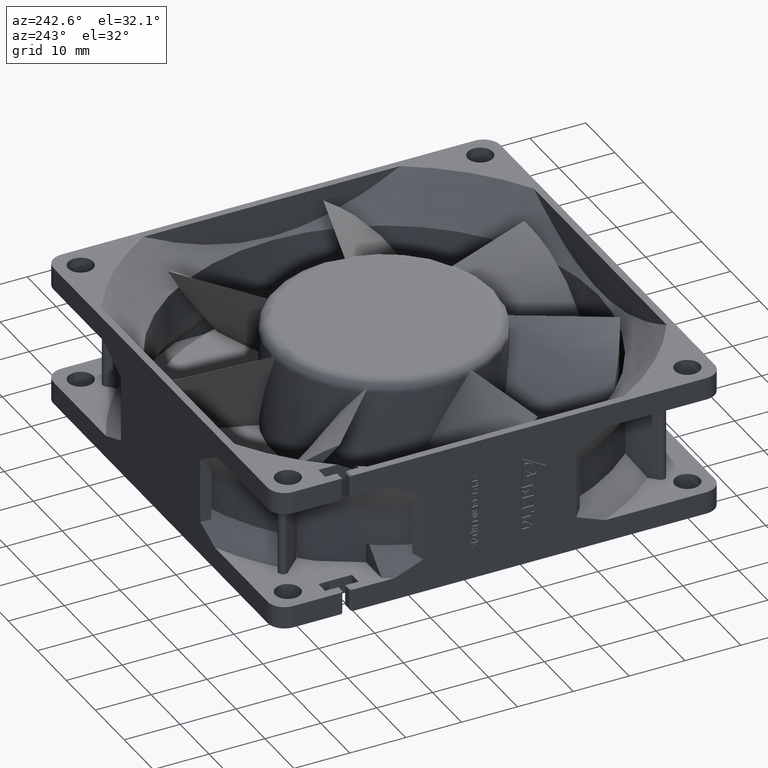
[diagram: clean part render]
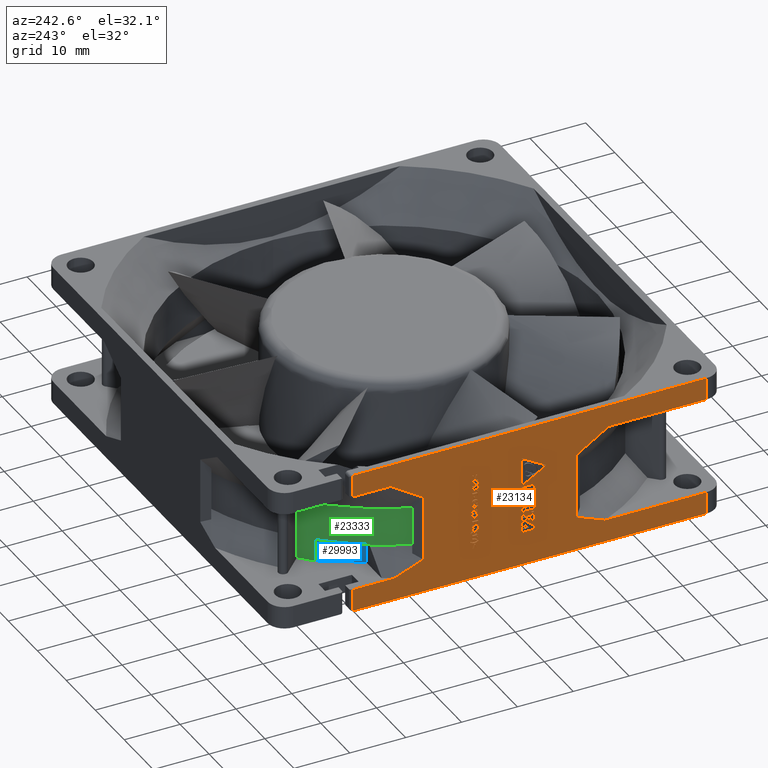
[diagram: same view with three faces highlighted in distinct colors, each labeled with its STEP entity id]
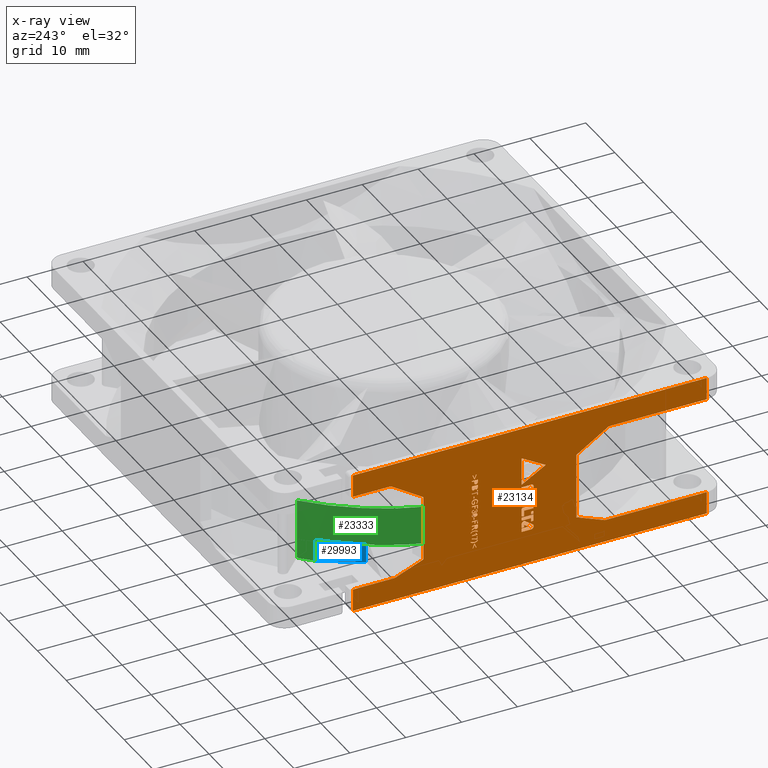
[diagram: x-ray of the same camera — body ghosted, the three highlighted faces saturated]
A machine part, auxiliary view with three faces highlighted in distinct colors.
The next image is the same camera in x-ray (body ghosted, the three faces saturated) — at least one of them is partly hidden behind the body in this view.
Their STEP definitions:

[orange] entity #23134 — the highlighted planar face has unit normal (1, 0, 0).
#315=DIRECTION('',(0.E0,1.E0,0.E0));
#316=VECTOR('',#315,6.33E1);
#317=CARTESIAN_POINT('',(-4.E1,-3.7E1,-2.54E1));
#318=LINE('',#317,#316);
#2240=DIRECTION('',(0.E0,0.E0,-1.E0));
#2241=VECTOR('',#2240,1.168666195889E1);
#2242=CARTESIAN_POINT('',(-4.E1,-1.37E1,-7.699419225518E0));
#2243=LINE('',#2242,#2241);
#2249=CARTESIAN_POINT('',(-4.E1,-1.37E1,-7.699419225518E0));
#2251=CARTESIAN_POINT('',(-4.E1,1.95E1,-4.E0));
#2252=CARTESIAN_POINT('',(-4.E1,1.883660768753E1,-4.484660441657E0));
#2253=CARTESIAN_POINT('',(-4.E1,1.752230989771E1,-5.404924870105E0));
#2254=CARTESIAN_POINT('',(-4.E1,1.557876711058E1,-6.643974055690E0));
#2255=CARTESIAN_POINT('',(-4.E1,1.432075038768E1,-7.364080275597E0));
#2256=CARTESIAN_POINT('',(-4.E1,1.37E1,-7.699419225517E0));
#2258=DIRECTION('',(0.E0,-1.E0,0.E0));
#2259=VECTOR('',#2258,6.8E0);
#2260=CARTESIAN_POINT('',(-4.E1,2.63E1,-4.E0));
#2261=LINE('',#2260,#2259);
#2262=DIRECTION('',(0.E0,1.E0,0.E0));
#2263=VECTOR('',#2262,6.33E1);
#2264=CARTESIAN_POINT('',(-4.E1,-3.7E1,0.E0));
#2265=LINE('',#2264,#2263);
#2266=DIRECTION('',(0.E0,-1.E0,0.E0));
#2267=VECTOR('',#2266,1.75E1);
#2268=CARTESIAN_POINT('',(-4.E1,-1.95E1,-4.E0));
#2269=LINE('',#2268,#2267);
#2270=CARTESIAN_POINT('',(-4.E1,-1.37E1,-7.699419225518E0));
#2271=CARTESIAN_POINT('',(-4.E1,-1.432307345671E1,-7.362825317816E0));
#2272=CARTESIAN_POINT('',(-4.E1,-1.558407567473E1,-6.641124315635E0));
#2273=CARTESIAN_POINT('',(-4.E1,-1.751807588496E1,-5.408433208781E0));
#2274=CARTESIAN_POINT('',(-4.E1,-1.883466195617E1,-4.486081951977E0));
#2275=CARTESIAN_POINT('',(-4.E1,-1.95E1,-4.E0));
#2277=CARTESIAN_POINT('',(-4.E1,-1.880531839667E1,-2.14E1));
#2278=CARTESIAN_POINT('',(-4.E1,-1.822070145586E1,-2.113895484257E1));
#2279=CARTESIAN_POINT('',(-4.E1,-1.706290113242E1,-2.064185734386E1));
#2280=CARTESIAN_POINT('',(-4.E1,-1.535512647161E1,-1.996887807438E1));
#2281=CARTESIAN_POINT('',(-4.E1,-1.424715449290E1,-1.957214856982E1));
#2282=CARTESIAN_POINT('',(-4.E1,-1.37E1,-1.938608118441E1));
#2284=DIRECTION('',(0.E0,1.E0,0.E0));
#2285=VECTOR('',#2284,1.819468160333E1);
#2286=CARTESIAN_POINT('',(-4.E1,-3.7E1,-2.14E1));
#2287=LINE('',#2286,#2285);
#2288=DIRECTION('',(0.E0,1.E0,0.E0));
#2289=VECTOR('',#2288,7.494681603334E0);
#2290=CARTESIAN_POINT('',(-4.E1,1.880531839667E1,-2.14E1));
#2291=LINE('',#2290,#2289);
#2292=CARTESIAN_POINT('',(-4.E1,1.37E1,-1.938608118441E1));
#2293=CARTESIAN_POINT('',(-4.E1,1.424875390442E1,-1.957269247163E1));
#2294=CARTESIAN_POINT('',(-4.E1,1.535876568426E1,-1.997029115153E1));
#2295=CARTESIAN_POINT('',(-4.E1,1.706324054246E1,-2.064197560191E1));
#2296=CARTESIAN_POINT('',(-4.E1,1.822082570013E1,-2.113901032054E1));
#2297=CARTESIAN_POINT('',(-4.E1,1.880531839667E1,-2.14E1));
#2439=DIRECTION('',(0.E0,8.660130291340E-1,5.000214329108E-1));
#2440=VECTOR('',#2439,4.962556984463E0);
#2441=CARTESIAN_POINT('',(-4.E1,-8.190240322069E0,-7.988903107318E0));
#2442=LINE('',#2441,#2440);
#2443=DIRECTION('',(0.E0,0.E0,-1.E0));
#2444=VECTOR('',#2443,4.962770253783E0);
#2445=CARTESIAN_POINT('',(-4.E1,-3.892601315705E0,-5.507518253046E0));
#2446=LINE('',#2445,#2444);
#2447=DIRECTION('',(0.E0,-8.660129815574E-1,5.000215153111E-1));
#2448=VECTOR('',#2447,4.962557257093E0);
#2449=CARTESIAN_POINT('',(-4.E1,-3.892601315705E0,-1.047028850683E1));
#2450=LINE('',#2449,#2448);
#2451=DIRECTION('',(0.E0,0.E0,-1.E0));
#2452=VECTOR('',#2451,6.204866583349E-1);
#2453=CARTESIAN_POINT('',(-4.E1,-3.892601315705E0,-1.094998377031E1));
#2454=LINE('',#2453,#2452);
#2455=DIRECTION('',(0.E0,-1.E0,0.E0));
#2456=VECTOR('',#2455,1.318118794838E0);
#2457=CARTESIAN_POINT('',(-4.E1,-3.892601315705E0,-1.157047042864E1));
#2458=LINE('',#2457,#2456);
#2459=DIRECTION('',(0.E0,7.663827686721E-1,-6.423841933629E-1));
#2460=VECTOR('',#2459,1.123941029441E0);
#2461=CARTESIAN_POINT('',(-4.E1,-5.210720110543E0,-1.157047042864E1));
#2462=LINE('',#2461,#2460);
#2463=DIRECTION('',(0.E0,0.E0,1.E0));
#2464=VECTOR('',#2463,5.989560037469E-1);
#2465=CARTESIAN_POINT('',(-4.E1,-4.349351072575E0,-1.229247238023E1));
#2466=LINE('',#2465,#2464);
#2467=DIRECTION('',(0.E0,1.E0,0.E0));
#2468=VECTOR('',#2467,4.593953291270E-1);
#2469=CARTESIAN_POINT('',(-4.E1,-4.349351072575E0,-1.169351637648E1));
#2470=LINE('',#2469,#2468);
#2471=DIRECTION('',(0.E0,0.E0,-1.E0));
#2472=VECTOR('',#2471,5.989560037469E-1);
#2473=CARTESIAN_POINT('',(-4.E1,-3.889955743448E0,-1.169351637648E1));
#2474=LINE('',#2473,#2472);
#2475=CARTESIAN_POINT('',(-4.E1,-4.345717087632E0,-1.229247238023E1));
#2476=DIRECTION('',(-1.E0,0.E0,0.E0));
#2477=DIRECTION('',(0.E0,1.E0,-3.507803318254E-14));
#2478=AXIS2_PLACEMENT_3D('',#2475,#2476,#2477);
#2480=DIRECTION('',(0.E0,-8.213210124288E-1,5.704662957116E-1));
#2481=VECTOR('',#2480,1.623785817053E0);
#2482=CARTESIAN_POINT('',(-4.E1,-4.542946895174E0,-1.270334803766E1));
#2483=LINE('',#2482,#2481);
#2484=CARTESIAN_POINT('',(-4.E1,-5.607843022627E0,-1.140717304053E1));
#2485=DIRECTION('',(-1.E0,0.E0,0.E0));
#2486=DIRECTION('',(0.E0,-5.878343897693E-1,-8.089812916282E-1));
#2487=AXIS2_PLACEMENT_3D('',#2484,#2485,#2486);
#2489=DIRECTION('',(0.E0,1.E0,0.E0));
#2490=VECTOR('',#2489,1.716871730718E0);
#2491=CARTESIAN_POINT('',(-4.E1,-5.609473046422E0,-1.094998377031E1));
#2492=LINE('',#2491,#2490);
#2493=CARTESIAN_POINT('',(-4.E1,-4.198567492918E0,-1.322383881672E1));
#2494=DIRECTION('',(-1.E0,0.E0,0.E0));
#2495=DIRECTION('',(0.E0,6.540421915686E-3,9.999786112118E-1));
#2496=AXIS2_PLACEMENT_3D('',#2493,#2494,#2495);
#2498=DIRECTION('',(0.E0,0.E0,-1.E0));
#2499=VECTOR('',#2498,1.301759412320E0);
#2500=CARTESIAN_POINT('',(-4.E1,-3.892601315705E0,-1.322395070570E1));
#2501=LINE('',#2500,#2499);
#2502=CARTESIAN_POINT('',(-4.E1,-4.050883068726E0,-1.452571011802E1));
#2503=DIRECTION('',(-1.E0,0.E0,0.E0));
#2504=DIRECTION('',(0.E0,1.E0,-1.122275186803E-14));
#2505=AXIS2_PLACEMENT_3D('',#2502,#2503,#2504);
#2507=DIRECTION('',(0.E0,-1.E0,0.E0));
#2508=VECTOR('',#2507,2.984680038488E-1);
#2509=CARTESIAN_POINT('',(-4.E1,-4.050883068726E0,-1.468399187104E1));
#2510=LINE('',#2509,#2508);
#2511=DIRECTION('',(0.E0,0.E0,1.E0));
#2512=VECTOR('',#2511,1.154063645918E0);
#2513=CARTESIAN_POINT('',(-4.E1,-4.349351072575E0,-1.468399187104E1));
#2514=LINE('',#2513,#2512);
#2515=DIRECTION('',(0.E0,-1.E0,0.E0));
#2516=VECTOR('',#2515,4.593953291270E-1);
#2517=CARTESIAN_POINT('',(-4.E1,-4.349351072575E0,-1.352992822512E1));
#2518=LINE('',#2517,#2516);
#2519=DIRECTION('',(0.E0,0.E0,-1.E0));
#2520=VECTOR('',#2519,1.001228633628E0);
#2521=CARTESIAN_POINT('',(-4.E1,-4.808746401702E0,-1.352992822512E1));
#2522=LINE('',#2521,#2520);
#2523=DIRECTION('',(0.E0,-1.E0,0.E0));
#2524=VECTOR('',#2523,4.593953291270E-1);
#2525=CARTESIAN_POINT('',(-4.E1,-4.808746401702E0,-1.453115685875E1));
#2526=LINE('',#2525,#2524);
#2527=DIRECTION('',(0.E0,0.E0,1.E0));
#2528=VECTOR('',#2527,1.001228633628E0);
#2529=CARTESIAN_POINT('',(-4.E1,-5.268141730829E0,-1.453115685875E1));
#2530=LINE('',#2529,#2528);
#2531=DIRECTION('',(0.E0,-1.E0,0.E0));
#2532=VECTOR('',#2531,3.081251643462E-1);
#2533=CARTESIAN_POINT('',(-4.E1,-5.268141730829E0,-1.352992822512E1));
#2534=LINE('',#2533,#2532);
#2535=DIRECTION('',(0.E0,0.E0,-1.E0));
#2536=VECTOR('',#2535,1.154063645918E0);
#2537=CARTESIAN_POINT('',(-4.E1,-5.576266895175E0,-1.352992822512E1));
#2538=LINE('',#2537,#2536);
#2539=DIRECTION('',(0.E0,-1.E0,0.E0));
#2540=VECTOR('',#2539,4.593953291270E-1);
#2541=CARTESIAN_POINT('',(-4.E1,-5.576266895175E0,-1.468399187104E1));
#2542=LINE('',#2541,#2540);
#2543=DIRECTION('',(0.E0,0.E0,1.E0));
#2544=VECTOR('',#2543,1.766112707744E0);
#2545=CARTESIAN_POINT('',(-4.E1,-6.035662224302E0,-1.468399187104E1));
#2546=LINE('',#2545,#2544);
#2547=DIRECTION('',(0.E0,1.E0,0.E0));
#2548=VECTOR('',#2547,1.839095879409E0);
#2549=CARTESIAN_POINT('',(-4.E1,-6.035662224302E0,-1.291787916329E1));
#2550=LINE('',#2549,#2548);
#2551=DIRECTION('',(0.E0,0.E0,1.E0));
#2552=VECTOR('',#2551,1.001228633628E0);
#2553=CARTESIAN_POINT('',(-4.E1,-4.349351072575E0,-1.645001883167E1));
#2554=LINE('',#2553,#2552);
#2555=DIRECTION('',(0.E0,-1.E0,0.E0));
#2556=VECTOR('',#2555,1.686311151727E0);
#2557=CARTESIAN_POINT('',(-4.E1,-4.349351072575E0,-1.544879019804E1));
#2558=LINE('',#2557,#2556);
#2559=DIRECTION('',(0.E0,0.E0,1.E0));
#2560=VECTOR('',#2559,6.113097769904E-1);
#2561=CARTESIAN_POINT('',(-4.E1,-6.035662224302E0,-1.544879019804E1));
#2562=LINE('',#2561,#2560);
#2563=DIRECTION('',(0.E0,1.E0,0.E0));
#2564=VECTOR('',#2563,1.839095879409E0);
#2565=CARTESIAN_POINT('',(-4.E1,-6.035662224302E0,-1.483748042105E1));
#2566=LINE('',#2565,#2564);
#2567=CARTESIAN_POINT('',(-4.E1,-4.198567446103E0,-1.514344007478E1));
#2568=DIRECTION('',(-1.E0,0.E0,0.E0));
#2569=DIRECTION('',(0.E0,6.540268909367E-3,9.999786122126E-1));
#2570=AXIS2_PLACEMENT_3D('',#2567,#2568,#2569);
#2572=DIRECTION('',(0.E0,0.E0,-1.E0));
#2573=VECTOR('',#2572,1.148499899431E0);
#2574=CARTESIAN_POINT('',(-4.E1,-3.892601315705E0,-1.514323717921E1));
#2575=LINE('',#2574,#2573);
#2576=CARTESIAN_POINT('',(-4.E1,-4.050883068726E0,-1.629173707864E1));
#2577=DIRECTION('',(-1.E0,0.E0,0.E0));
#2578=DIRECTION('',(0.E0,1.E0,0.E0));
#2579=AXIS2_PLACEMENT_3D('',#2576,#2577,#2578);
#2581=DIRECTION('',(0.E0,-1.E0,0.E0));
#2582=VECTOR('',#2581,2.984680038488E-1);
#2583=CARTESIAN_POINT('',(-4.E1,-4.050883068726E0,-1.645001883167E1));
#2584=LINE('',#2583,#2582);
#2585=DIRECTION('',(0.E0,1.E0,0.E0));
#2586=VECTOR('',#2585,4.593953291270E-1);
#2587=CARTESIAN_POINT('',(-4.E1,-6.035662224302E0,-1.598018753676E1));
#2588=LINE('',#2587,#2586);
#2589=DIRECTION('',(0.E0,0.E0,-1.E0));
#2590=VECTOR('',#2589,6.113097769904E-1);
#2591=CARTESIAN_POINT('',(-4.E1,-5.576266895175E0,-1.598018753676E1));
#2592=LINE('',#2591,#2590);
#2593=DIRECTION('',(0.E0,1.E0,0.E0));
#2594=VECTOR('',#2593,1.686311151727E0);
#2595=CARTESIAN_POINT('',(-4.E1,-5.576266895175E0,-1.659149731375E1));
#2596=LINE('',#2595,#2594);
#2597=DIRECTION('',(0.E0,0.E0,-1.E0));
#2598=VECTOR('',#2597,4.532329603712E-1);
#2599=CARTESIAN_POINT('',(-4.E1,-3.889955743448E0,-1.659149731375E1));
#2600=LINE('',#2599,#2598);
#2601=CARTESIAN_POINT('',(-4.E1,-4.047720484543E0,-1.704102033407E1));
#2602=DIRECTION('',(-1.E0,0.E0,0.E0));
#2603=DIRECTION('',(0.E0,9.997236217801E-1,-2.350914832500E-2));
#2604=AXIS2_PLACEMENT_3D('',#2601,#2602,#2603);
#2606=DIRECTION('',(0.E0,-1.E0,0.E0));
#2607=VECTOR('',#2606,1.525371935251E0);
#2608=CARTESIAN_POINT('',(-4.E1,-4.050894959924E0,-1.719879675783E1));
#2609=LINE('',#2608,#2607);
#2610=DIRECTION('',(0.E0,0.E0,-1.E0));
#2611=VECTOR('',#2610,6.204866583349E-1);
#2612=CARTESIAN_POINT('',(-4.E1,-5.576266895175E0,-1.719879675783E1));
#2613=LINE('',#2612,#2611);
#2614=DIRECTION('',(0.E0,-1.E0,0.E0));
#2615=VECTOR('',#2614,4.593953291270E-1);
#2616=CARTESIAN_POINT('',(-4.E1,-5.576266895175E0,-1.781928341617E1));
#2617=LINE('',#2616,#2615);
#2618=DIRECTION('',(0.E0,0.E0,1.E0));
#2619=VECTOR('',#2618,1.839095879409E0);
#2620=CARTESIAN_POINT('',(-4.E1,-6.035662224302E0,-1.781928341617E1));
#2621=LINE('',#2620,#2619);
#2622=DIRECTION('',(0.E0,8.129324031237E-1,5.823580582009E-1));
#2623=VECTOR('',#2622,1.610633318372E0);
#2624=CARTESIAN_POINT('',(-4.E1,-5.848933363403E0,-1.844148673359E1));
#2625=LINE('',#2624,#2623);
#2626=CARTESIAN_POINT('',(-4.E1,-4.299675230532E0,-1.783564750367E1));
#2627=DIRECTION('',(-1.E0,0.E0,0.E0));
#2628=DIRECTION('',(0.E0,-5.855760392978E-1,8.106174820471E-1));
#2629=AXIS2_PLACEMENT_3D('',#2626,#2627,#2628);
#2631=DIRECTION('',(0.E0,0.E0,-1.E0));
#2632=VECTOR('',#2631,7.189298860923E-1);
#2633=CARTESIAN_POINT('',(-4.E1,-3.889955743448E0,-1.783511275474E1));
#2634=LINE('',#2633,#2632);
#2635=DIRECTION('',(0.E0,-1.E0,0.E0));
#2636=VECTOR('',#2635,4.593953291270E-1);
#2637=CARTESIAN_POINT('',(-4.E1,-3.889955743448E0,-1.855404264083E1));
#2638=LINE('',#2637,#2636);
#2639=DIRECTION('',(0.E0,0.E0,1.E0));
#2640=VECTOR('',#2639,4.490707316437E-1);
#2641=CARTESIAN_POINT('',(-4.E1,-4.349351072575E0,-1.855404264083E1));
#2642=LINE('',#2641,#2640);
#2643=DIRECTION('',(0.E0,-8.129324031237E-1,-5.823580582009E-1));
#2644=VECTOR('',#2643,1.006024458071E0);
#2645=CARTESIAN_POINT('',(-4.E1,-4.349351072575E0,-1.810497190919E1));
#2646=LINE('',#2645,#2644);
#2647=DIRECTION('',(0.E0,1.E0,0.E0));
#2648=VECTOR('',#2647,1.274579637171E0);
#2649=CARTESIAN_POINT('',(-4.E1,-5.167180952876E0,-1.869083835909E1));
#2650=LINE('',#2649,#2648);
#2651=DIRECTION('',(0.E0,0.E0,-1.E0));
#2652=VECTOR('',#2651,6.204866583349E-1);
#2653=CARTESIAN_POINT('',(-4.E1,-3.892601315705E0,-1.869083835909E1));
#2654=LINE('',#2653,#2652);
#2655=DIRECTION('',(0.E0,-1.E0,0.E0));
#2656=VECTOR('',#2655,1.677477886048E0);
#2657=CARTESIAN_POINT('',(-4.E1,-3.892601315705E0,-1.931132501743E1));
#2658=LINE('',#2657,#2656);
#2659=CARTESIAN_POINT('',(-4.E1,-5.570261452313E0,-1.883176654297E1));
#2660=DIRECTION('',(-1.E0,0.E0,0.E0));
#2661=DIRECTION('',(0.E0,3.800382161546E-4,-9.999999277855E-1));
#2662=AXIS2_PLACEMENT_3D('',#2659,#2660,#2661);
#2664=DIRECTION('',(0.E0,-1.E0,0.E0));
#2665=VECTOR('',#2664,1.002369716763E-1);
#2666=CARTESIAN_POINT('',(-4.E1,4.576303324103E0,-6.973696711659E0));
#2667=LINE('',#2666,#2665);
#2668=DIRECTION('',(0.E0,-3.883205704948E-1,9.215243537371E-1));
#2669=VECTOR('',#2668,8.439550691603E-1);
#2670=CARTESIAN_POINT('',(-4.E1,4.476066352427E0,-6.973696711659E0));
#2671=LINE('',#2670,#2669);
#2672=DIRECTION('',(0.E0,1.E0,0.E0));
#2673=VECTOR('',#2672,1.222748905420E-1);
#2674=CARTESIAN_POINT('',(-4.E1,4.148341238499E0,-6.195971561968E0));
#2675=LINE('',#2674,#2673);
#2676=DIRECTION('',(0.E0,3.775300340756E-1,-9.259973398293E-1));
#2677=VECTOR('',#2676,6.778908200348E-1);
#2678=CARTESIAN_POINT('',(-4.E1,4.270616129041E0,-6.195971561968E0));
#2679=LINE('',#2678,#2677);
#2680=DIRECTION('',(0.E0,3.766303130507E-1,9.263636474362E-1));
#2681=VECTOR('',#2680,6.776227648658E-1);
#2682=CARTESIAN_POINT('',(-4.E1,4.526540273428E0,-6.823696658015E0));
#2683=LINE('',#2682,#2681);
#2684=DIRECTION('',(0.E0,1.E0,0.E0));
#2685=VECTOR('',#2684,1.208530873060E-1);
#2686=CARTESIAN_POINT('',(-4.E1,4.781753547490E0,-6.195971561968E0));
#2687=LINE('',#2686,#2685);
#2688=DIRECTION('',(0.E0,-3.868885157577E-1,-9.221264969486E-1));
#2689=VECTOR('',#2688,8.434039714341E-1);
#2690=CARTESIAN_POINT('',(-4.E1,4.902606634796E0,-6.195971561968E0));
#2691=LINE('',#2690,#2689);
#2692=CARTESIAN_POINT('',(-4.E1,4.266350719333E0,-7.992417103052E0));
#2693=CARTESIAN_POINT('',(-4.E1,4.173222732544E0,-7.992417103052E0));
#2694=CARTESIAN_POINT('',(-4.E1,4.097156384587E0,-7.961137431860E0));
#2695=CARTESIAN_POINT('',(-4.E1,4.038341107255E0,-7.898401161144E0));
#2697=CARTESIAN_POINT('',(-4.E1,4.038341107255E0,-7.898401161144E0));
#2698=CARTESIAN_POINT('',(-4.E1,3.979857805371E0,-7.836018997431E0));
#2699=CARTESIAN_POINT('',(-4.E1,3.95E0,-7.754265373945E0));
#2700=CARTESIAN_POINT('',(-4.E1,3.95E0,-7.654739397764E0));
#2702=DIRECTION('',(0.E0,0.E0,1.E0));
#2703=VECTOR('',#2702,4.308057546616E-1);
#2704=CARTESIAN_POINT('',(-4.E1,3.95E0,-7.654739397764E0));
#2705=LINE('',#2704,#2703);
#2706=DIRECTION('',(0.E0,1.E0,0.E0));
#2707=VECTOR('',#2706,1.05E0);
#2708=CARTESIAN_POINT('',(-4.E1,3.95E0,-7.223933643103E0));
#2709=LINE('',#2708,#2707);
#2710=DIRECTION('',(0.E0,-1.864732250803E-14,-1.E0));
#2711=VECTOR('',#2710,1.428910374641E-1);
#2712=CARTESIAN_POINT('',(-4.E1,5.E0,-7.223933643103E0));
#2713=LINE('',#2712,#2711);
#2714=DIRECTION('',(0.E0,-1.E0,0.E0));
#2715=VECTOR('',#2714,4.251184791326E-1);
#2716=CARTESIAN_POINT('',(-4.E1,5.E0,-7.366824680567E0));
#2717=LINE('',#2716,#2715);
#2718=DIRECTION('',(0.E0,0.E0,-1.E0));
#2719=VECTOR('',#2718,2.587676882744E-1);
#2720=CARTESIAN_POINT('',(-4.E1,4.574881520867E0,-7.366824680567E0));
#2721=LINE('',#2720,#2719);
#2722=CARTESIAN_POINT('',(-4.E1,4.574881520867E0,-7.625592368841E0));
#2723=CARTESIAN_POINT('',(-4.E1,4.574881520867E0,-7.737203735113E0));
#2724=CARTESIAN_POINT('',(-4.E1,4.547156389058E0,-7.826066374779E0));
#2725=CARTESIAN_POINT('',(-4.E1,4.491028734529E0,-7.892919095621E0));
#2727=CARTESIAN_POINT('',(-4.E1,4.491028734529E0,-7.892919095621E0));
#2728=CARTESIAN_POINT('',(-4.E1,4.435545054078E0,-7.959004789591E0));
#2729=CARTESIAN_POINT('',(-4.E1,4.360189545155E0,-7.992417103052E0));
#2730=CARTESIAN_POINT('',(-4.E1,4.266350719333E0,-7.992417103052E0));
#2759=CARTESIAN_POINT('',(-4.E1,4.702843593061E0,-9.016824519634E0));
#2760=CARTESIAN_POINT('',(-4.E1,4.640995246172E0,-9.016824519634E0));
#2761=CARTESIAN_POINT('',(-4.E1,4.588388620317E0,-8.998341202736E0));
#2762=CARTESIAN_POINT('',(-4.E1,4.544567140151E0,-8.962487321542E0));
#2764=CARTESIAN_POINT('',(-4.E1,4.544567140151E0,-8.962487321542E0));
#2765=CARTESIAN_POINT('',(-4.E1,4.494549763203E0,-8.921564078331E0));
#2766=CARTESIAN_POINT('',(-4.E1,4.459004744887E0,-8.856161129475E0));
#2767=CARTESIAN_POINT('',(-4.E1,4.436255893111E0,-8.765876686573E0));
#2769=CARTESIAN_POINT('',(-4.E1,4.436255893111E0,-8.765876686573E0));
#2770=CARTESIAN_POINT('',(-4.E1,4.389336511493E0,-8.908056759834E0));
#2771=CARTESIAN_POINT('',(-4.E1,4.308293852210E0,-8.979857885838E0));
#2772=CARTESIAN_POINT('',(-4.E1,4.194549781084E0,-8.979857885838E0));
#2774=CARTESIAN_POINT('',(-4.E1,4.194549781084E0,-8.979857885838E0));
#2775=CARTESIAN_POINT('',(-4.E1,4.122037941217E0,-8.979857885838E0));
#2776=CARTESIAN_POINT('',(-4.E1,4.063744071126E0,-8.949289178848E0));
#2777=CARTESIAN_POINT('',(-4.E1,4.018246370012E0,-8.888862524020E0));
#2779=CARTESIAN_POINT('',(-4.E1,4.018246370012E0,-8.888862524020E0));
#2780=CARTESIAN_POINT('',(-4.E1,3.972748789191E0,-8.828436028957E0));
#2781=CARTESIAN_POINT('',(-4.E1,3.95E0,-8.749526011944E0));
#2782=CARTESIAN_POINT('',(-4.E1,3.95E0,-8.652843642235E0));
#2784=DIRECTION('',(0.E0,0.E0,1.E0));
#2785=VECTOR('',#2784,4.180094003677E-1);
#2786=CARTESIAN_POINT('',(-4.E1,3.95E0,-8.652843642235E0));
#2787=LINE('',#2786,#2785);
#2788=DIRECTION('',(0.E0,1.E0,0.E0));
#2789=VECTOR('',#2788,1.05E0);
#2790=CARTESIAN_POINT('',(-4.E1,3.95E0,-8.234834241867E0));
#2791=LINE('',#2790,#2789);
#2792=DIRECTION('',(0.E0,0.E0,-1.E0));
#2793=VECTOR('',#2792,4.599525332451E-1);
#2794=CARTESIAN_POINT('',(-4.E1,5.E0,-8.234834241867E0));
#2795=LINE('',#2794,#2793);
#2796=CARTESIAN_POINT('',(-4.E1,5.E0,-8.694786775112E0));
#2797=CARTESIAN_POINT('',(-4.E1,5.E0,-8.790047466755E0));
#2798=CARTESIAN_POINT('',(-4.E1,4.972985781543E0,-8.867535555363E0));
#2799=CARTESIAN_POINT('',(-4.E1,4.917727775576E0,-8.927428073899E0));
#2801=CARTESIAN_POINT('',(-4.E1,4.917727775576E0,-8.927428073899E0));
#2802=CARTESIAN_POINT('',(-4.E1,4.862796206772E0,-8.986966776848E0));
#2803=CARTESIAN_POINT('',(-4.E1,4.790995252877E0,-9.016824519634E0));
#2804=CARTESIAN_POINT('',(-4.E1,4.702843593061E0,-9.016824519634E0));
#2855=DIRECTION('',(0.E0,-1.E0,0.E0));
#2856=VECTOR('',#2855,1.272512018681E-1);
#2857=CARTESIAN_POINT('',(-4.E1,4.077251201868E0,-1.003909941912E1));
#2858=LINE('',#2857,#2856);
#2859=DIRECTION('',(0.E0,0.E0,1.E0));
#2860=VECTOR('',#2859,8.530804395676E-1);
#2861=CARTESIAN_POINT('',(-4.E1,3.95E0,-1.003909941912E1));
#2862=LINE('',#2861,#2860);
#2863=DIRECTION('',(0.E0,1.E0,0.E0));
#2864=VECTOR('',#2863,1.272512018681E-1);
#2865=CARTESIAN_POINT('',(-4.E1,3.95E0,-9.186018979549E0));
#2866=LINE('',#2865,#2864);
#2867=DIRECTION('',(0.E0,0.E0,-1.E0));
#2868=VECTOR('',#2867,3.547393441200E-1);
#2869=CARTESIAN_POINT('',(-4.E1,4.077251201868E0,-9.186018979549E0));
#2870=LINE('',#2869,#2868);
#2871=DIRECTION('',(0.E0,1.E0,0.E0));
#2872=VECTOR('',#2871,9.227487981319E-1);
#2873=CARTESIAN_POINT('',(-4.E1,4.077251201868E0,-9.540758323669E0));
#2874=LINE('',#2873,#2872);
#2875=DIRECTION('',(0.E0,-1.864732250803E-14,-1.E0));
#2876=VECTOR('',#2875,1.428910374641E-1);
#2877=CARTESIAN_POINT('',(-4.E1,5.E0,-9.540758323669E0));
#2878=LINE('',#2877,#2876);
#2879=DIRECTION('',(0.E0,-1.E0,0.E0));
#2880=VECTOR('',#2879,9.227487981319E-1);
#2881=CARTESIAN_POINT('',(-4.E1,5.E0,-9.683649361134E0));
#2882=LINE('',#2881,#2880);
#2883=DIRECTION('',(0.E0,0.E0,-1.E0));
#2884=VECTOR('',#2883,3.554500579834E-1);
#2885=CARTESIAN_POINT('',(-4.E1,4.077251201868E0,-9.683649361134E0));
#2886=LINE('',#2885,#2884);
#2887=DIRECTION('',(0.E0,-1.E0,0.E0));
#2888=VECTOR('',#2887,1.194312840700E-1);
#2889=CARTESIAN_POINT('',(-4.E1,4.698578214645E0,-1.059573457241E1));
#2890=LINE('',#2889,#2888);
#2891=DIRECTION('',(0.E0,0.E0,1.E0));
#2892=VECTOR('',#2891,4.023696899414E-1);
#2893=CARTESIAN_POINT('',(-4.E1,4.579146930575E0,-1.059573457241E1));
#2894=LINE('',#2893,#2892);
#2895=DIRECTION('',(0.E0,1.E0,0.E0));
#2896=VECTOR('',#2895,1.194312840700E-1);
#2897=CARTESIAN_POINT('',(-4.E1,4.579146930575E0,-1.019336488247E1));
#2898=LINE('',#2897,#2896);
#2899=DIRECTION('',(0.E0,0.E0,-1.E0));
#2900=VECTOR('',#2899,4.023696899414E-1);
#2901=CARTESIAN_POINT('',(-4.E1,4.698578214645E0,-1.019336488247E1));
#2902=LINE('',#2901,#2900);
#2903=DIRECTION('',(0.E0,-1.E0,0.E0));
#2904=VECTOR('',#2903,3.447867214680E-1);
#2905=CARTESIAN_POINT('',(-4.E1,4.825118483603E0,-1.171398112774E1));
#2906=LINE('',#2905,#2904);
#2907=DIRECTION('',(0.E0,0.E0,1.E0));
#2908=VECTOR('',#2907,5.537915468216E-1);
#2909=CARTESIAN_POINT('',(-4.E1,4.480331762135E0,-1.171398112774E1));
#2910=LINE('',#2909,#2908);
#2911=DIRECTION('',(0.E0,1.E0,0.E0));
#2912=VECTOR('',#2911,1.293838754296E-1);
#2913=CARTESIAN_POINT('',(-4.E1,4.480331762135E0,-1.116018958092E1));
#2914=LINE('',#2913,#2912);
#2915=DIRECTION('',(0.E0,0.E0,-1.E0));
#2916=VECTOR('',#2915,4.094788312912E-1);
#2917=CARTESIAN_POINT('',(-4.E1,4.609715637565E0,-1.116018958092E1));
#2918=LINE('',#2917,#2916);
#2919=DIRECTION('',(0.E0,1.E0,0.E0));
#2920=VECTOR('',#2919,1.706161223352E-1);
#2921=CARTESIAN_POINT('',(-4.E1,4.609715637565E0,-1.156966841221E1));
#2922=LINE('',#2921,#2920);
#2923=CARTESIAN_POINT('',(-4.E1,4.780331759900E0,-1.156966841221E1));
#2924=CARTESIAN_POINT('',(-4.E1,4.865639813244E0,-1.149573464394E1));
#2925=CARTESIAN_POINT('',(-4.E1,4.908293839917E0,-1.140687212944E1));
#2926=CARTESIAN_POINT('',(-4.E1,4.908293839917E0,-1.130165894032E1));
#2928=CARTESIAN_POINT('',(-4.E1,4.908293839917E0,-1.130165894032E1));
#2929=CARTESIAN_POINT('',(-4.E1,4.908293839917E0,-1.118862564564E1));
#2930=CARTESIAN_POINT('',(-4.E1,4.872748813778E0,-1.110047409534E1));
#2931=CARTESIAN_POINT('',(-4.E1,4.801835691382E0,-1.103700665239E1));
#2933=CARTESIAN_POINT('',(-4.E1,4.801835691382E0,-1.103700665239E1));
#2934=CARTESIAN_POINT('',(-4.E1,4.730568724871E0,-1.097322251797E1));
#2935=CARTESIAN_POINT('',(-4.E1,4.631042654812E0,-1.094194309711E1));
#2936=CARTESIAN_POINT('',(-4.E1,4.503791484237E0,-1.094194309711E1));
#2938=CARTESIAN_POINT('',(-4.E1,4.503791484237E0,-1.094194309711E1));
#2939=CARTESIAN_POINT('',(-4.E1,4.363033151627E0,-1.094194309711E1));
#2940=CARTESIAN_POINT('',(-4.E1,4.253554490209E0,-1.097393348217E1));
#2941=CARTESIAN_POINT('',(-4.E1,4.174073928123E0,-1.103808817176E1));
#2943=CARTESIAN_POINT('',(-4.E1,4.174073928123E0,-1.103808817176E1));
#2944=CARTESIAN_POINT('',(-4.E1,4.095023679733E0,-1.110189552307E1));
#2945=CARTESIAN_POINT('',(-4.E1,4.055213251710E0,-1.119004757404E1));
#2946=CARTESIAN_POINT('',(-4.E1,4.055213251710E0,-1.130308036804E1));
#2948=CARTESIAN_POINT('',(-4.E1,4.055213251710E0,-1.130308036804E1));
#2949=CARTESIAN_POINT('',(-4.E1,4.055213251710E0,-1.142037894726E1));
#2950=CARTESIAN_POINT('',(-4.E1,4.113507121801E0,-1.151563963890E1));
#2951=CARTESIAN_POINT('',(-4.E1,4.228672996163E0,-1.158815147877E1));
#2953=DIRECTION('',(0.E0,-8.093756066964E-1,-5.872913478716E-1));
#2954=VECTOR('',#2953,1.440464434972E-1);
#2955=CARTESIAN_POINT('',(-4.E1,4.228672996163E0,-1.158815147877E1));
#2956=LINE('',#2955,#2954);
#2957=CARTESIAN_POINT('',(-4.E1,4.112085318565E0,-1.167274870872E1));
#2958=CARTESIAN_POINT('',(-4.E1,4.058056858182E0,-1.163436014652E1));
#2959=CARTESIAN_POINT('',(-4.E1,4.013981020451E0,-1.158530812263E1));
#2960=CARTESIAN_POINT('',(-4.E1,3.980864127624E0,-1.152543009180E1));
#2962=CARTESIAN_POINT('',(-4.E1,3.980864127624E0,-1.152543009180E1));
#2963=CARTESIAN_POINT('',(-4.E1,3.943601948023E0,-1.145805704594E1));
#2964=CARTESIAN_POINT('',(-4.E1,3.924407541752E0,-1.138625617027E1));
#2965=CARTESIAN_POINT('',(-4.E1,3.924407541752E0,-1.131018950939E1));
#2967=CARTESIAN_POINT('',(-4.E1,3.924407541752E0,-1.131018950939E1));
#2968=CARTESIAN_POINT('',(-4.E1,3.924407541752E0,-1.114881515503E1));
#2969=CARTESIAN_POINT('',(-4.E1,3.977014198899E0,-1.102156407833E1));
#2970=CARTESIAN_POINT('',(-4.E1,4.082227623691E0,-1.092843590345E1));
#2972=CARTESIAN_POINT('',(-4.E1,4.082227623691E0,-1.092843590345E1));
#2973=CARTESIAN_POINT('',(-4.E1,4.187440764904E0,-1.083530797958E1));
#2974=CARTESIAN_POINT('',(-4.E1,4.331042641401E0,-1.078909931183E1));
#2975=CARTESIAN_POINT('',(-4.E1,4.512322272360E0,-1.078909931183E1));
#2977=CARTESIAN_POINT('',(-4.E1,4.512322272360E0,-1.078909931183E1));
#2978=CARTESIAN_POINT('',(-4.E1,4.671563984454E0,-1.078909931183E1));
#2979=CARTESIAN_POINT('',(-4.E1,4.798104269058E0,-1.083530797958E1));
#2980=CARTESIAN_POINT('',(-4.E1,4.893365055231E0,-1.092772518540E1));
#2982=CARTESIAN_POINT('',(-4.E1,4.893365055231E0,-1.092772518540E1));
#2983=CARTESIAN_POINT('',(-4.E1,4.988625592692E0,-1.102014214993E1));
#2984=CARTESIAN_POINT('',(-4.E1,5.036255923845E0,-1.114383890629E1));
#2985=CARTESIAN_POINT('',(-4.E1,5.036255923845E0,-1.129881508350E1));
#2987=CARTESIAN_POINT('',(-4.E1,5.036255923845E0,-1.129881508350E1));
#2988=CARTESIAN_POINT('',(-4.E1,5.036255923845E0,-1.141540269852E1));
#2989=CARTESIAN_POINT('',(-4.E1,5.E0,-1.152132685184E1));
#2990=CARTESIAN_POINT('',(-4.E1,4.928765289984E0,-1.161576691039E1));
#2992=CARTESIAN_POINT('',(-4.E1,4.928765289984E0,-1.161576691039E1));
#2993=CARTESIAN_POINT('',(-4.E1,4.906161135063E0,-1.164573457241E1));
#2994=CARTESIAN_POINT('',(-4.E1,4.871327010542E0,-1.167843592167E1));
#2995=CARTESIAN_POINT('',(-4.E1,4.825118483603E0,-1.171398112774E1));
#2997=DIRECTION('',(0.E0,0.E0,1.E0));
#2998=VECTOR('',#2997,6.547389507294E-1);
#2999=CARTESIAN_POINT('',(-4.E1,3.95E0,-1.263744051456E1));
#3000=LINE('',#2999,#2998);
#3001=DIRECTION('',(0.E0,1.E0,0.E0));
#3002=VECTOR('',#3001,1.05E0);
#3003=CARTESIAN_POINT('',(-4.E1,3.95E0,-1.198270156384E1));
#3004=LINE('',#3003,#3002);
#3005=DIRECTION('',(0.E0,-1.846362082030E-14,-1.E0));
#3006=VECTOR('',#3005,1.443127155304E-1);
#3007=CARTESIAN_POINT('',(-4.E1,5.E0,-1.198270156384E1));
#3008=LINE('',#3007,#3006);
#3009=DIRECTION('',(0.E0,-1.E0,0.E0));
#3010=VECTOR('',#3009,4.684834152460E-1);
#3011=CARTESIAN_POINT('',(-4.E1,5.E0,-1.212701427937E1));
#3012=LINE('',#3011,#3010);
#3013=DIRECTION('',(0.E0,0.E0,-1.E0));
#3014=VECTOR('',#3013,3.881514072418E-1);
#3015=CARTESIAN_POINT('',(-4.E1,4.531516584754E0,-1.212701427937E1));
#3016=LINE('',#3015,#3014);
#3017=DIRECTION('',(0.E0,-1.E0,0.E0));
#3018=VECTOR('',#3017,1.300948083401E-1);
#3019=CARTESIAN_POINT('',(-4.E1,4.531516584754E0,-1.251516568661E1));
#3020=LINE('',#3019,#3018);
#3021=DIRECTION('',(0.E0,0.E0,1.E0));
#3022=VECTOR('',#3021,3.881514072418E-1);
#3023=CARTESIAN_POINT('',(-4.E1,4.401421776414E0,-1.251516568661E1));
#3024=LINE('',#3023,#3022);
#3025=DIRECTION('',(0.E0,-1.E0,0.E0));
#3026=VECTOR('',#3025,3.213269680738E-1);
#3027=CARTESIAN_POINT('',(-4.E1,4.401421776414E0,-1.212701427937E1));
#3028=LINE('',#3027,#3026);
#3029=DIRECTION('',(0.E0,0.E0,-1.E0));
#3030=VECTOR('',#3029,4.542655706406E-1);
#3031=CARTESIAN_POINT('',(-4.E1,4.080094808340E0,-1.212701427937E1));
#3032=LINE('',#3031,#3030);
#3033=DIRECTION('',(0.E0,-9.181050854003E-1,-3.963370436409E-1));
#3034=VECTOR('',#3033,1.416992568812E-1);
#3035=CARTESIAN_POINT('',(-4.E1,4.080094808340E0,-1.258127985001E1));
#3036=LINE('',#3035,#3034);
#3037=CARTESIAN_POINT('',(-4.E1,4.720616102219E0,-1.335758316517E1));
#3038=CARTESIAN_POINT('',(-4.E1,4.593364931643E0,-1.335758316517E1));
#3039=CARTESIAN_POINT('',(-4.E1,4.508767764270E0,-1.329217996597E1));
#3040=CARTESIAN_POINT('',(-4.E1,4.466824662685E0,-1.316208553314E1));
#3042=CARTESIAN_POINT('',(-4.E1,4.466824662685E0,-1.316208553314E1));
#3043=CARTESIAN_POINT('',(-4.E1,4.417772513628E0,-1.327156400681E1));
#3044=CARTESIAN_POINT('',(-4.E1,4.343838870525E0,-1.332701420784E1));
#3045=CARTESIAN_POINT('',(-4.E1,4.245734572411E0,-1.332701420784E1));
#3047=CARTESIAN_POINT('',(-4.E1,4.245734572411E0,-1.332701420784E1));
#3048=CARTESIAN_POINT('',(-4.E1,4.173933634162E0,-1.332701420784E1));
#3049=CARTESIAN_POINT('',(-4.E1,4.113507121801E0,-1.330142199993E1));
#3050=CARTESIAN_POINT('',(-4.E1,4.064639391241E0,-1.325077077326E1));
#3052=CARTESIAN_POINT('',(-4.E1,4.064639391241E0,-1.325077077326E1));
#3053=CARTESIAN_POINT('',(-4.E1,4.016113725305E0,-1.320047409534E1));
#3054=CARTESIAN_POINT('',(-4.E1,3.991232231259E0,-1.313791475296E1));
#3055=CARTESIAN_POINT('',(-4.E1,3.991232231259E0,-1.306327002048E1));
#3057=CARTESIAN_POINT('',(-4.E1,3.991232231259E0,-1.306327002048E1));
#3058=CARTESIAN_POINT('',(-4.E1,3.991232231259E0,-1.298293857574E1));
#3059=CARTESIAN_POINT('',(-4.E1,4.013270118833E0,-1.291540298462E1));
#3060=CARTESIAN_POINT('',(-4.E1,4.057345956564E0,-1.285995278358E1));
#3062=CARTESIAN_POINT('',(-4.E1,4.057345956564E0,-1.285995278358E1));
#3063=CARTESIAN_POINT('',(-4.E1,4.101421794295E0,-1.280450258255E1));
#3064=CARTESIAN_POINT('',(-4.E1,4.154028451443E0,-1.277677748203E1));
#3065=CARTESIAN_POINT('',(-4.E1,4.216587668657E0,-1.277677748203E1));
#3067=CARTESIAN_POINT('',(-4.E1,4.216587668657E0,-1.277677748203E1));
#3068=CARTESIAN_POINT('',(-4.E1,4.236492913961E0,-1.277677748203E1));
#3069=CARTESIAN_POINT('',(-4.E1,4.264928916097E0,-1.278246469498E1));
#3070=CARTESIAN_POINT('',(-4.E1,4.302606639266E0,-1.279383862019E1));
#3072=DIRECTION('',(0.E0,-4.039318547404E-1,-9.147890777256E-1));
#3073=VECTOR('',#3072,1.196767397076E-1);
#3074=CARTESIAN_POINT('',(-4.E1,4.302606639266E0,-1.279383862019E1));
#3075=LINE('',#3074,#3073);
#3076=CARTESIAN_POINT('',(-4.E1,4.254265391827E0,-1.290331759453E1));
#3077=CARTESIAN_POINT('',(-4.E1,4.234360209107E0,-1.289691941738E1));
#3078=CARTESIAN_POINT('',(-4.E1,4.218009471893E0,-1.289407606125E1));
#3079=CARTESIAN_POINT('',(-4.E1,4.205213242769E0,-1.289407606125E1));
#3081=CARTESIAN_POINT('',(-4.E1,4.205213242769E0,-1.289407606125E1));
#3082=CARTESIAN_POINT('',(-4.E1,4.176777240634E0,-1.289407606125E1));
#3083=CARTESIAN_POINT('',(-4.E1,4.151895746589E0,-1.290758287907E1));
#3084=CARTESIAN_POINT('',(-4.E1,4.130396793196E0,-1.293517314844E1));
#3086=CARTESIAN_POINT('',(-4.E1,4.130396793196E0,-1.293517314844E1));
#3087=CARTESIAN_POINT('',(-4.E1,4.109241712093E0,-1.296232211590E1));
#3088=CARTESIAN_POINT('',(-4.E1,4.098578187823E0,-1.299502346516E1));
#3089=CARTESIAN_POINT('',(-4.E1,4.098578187823E0,-1.303270156384E1));
#3091=CARTESIAN_POINT('',(-4.E1,4.098578187823E0,-1.303270156384E1));
#3092=CARTESIAN_POINT('',(-4.E1,4.098578187823E0,-1.313649282455E1));
#3093=CARTESIAN_POINT('',(-4.E1,4.151895746589E0,-1.318838870525E1));
#3094=CARTESIAN_POINT('',(-4.E1,4.257819899917E0,-1.318838870525E1));
#3096=CARTESIAN_POINT('',(-4.E1,4.257819899917E0,-1.318838870525E1));
#3097=CARTESIAN_POINT('',(-4.E1,4.360189545155E0,-1.318838870525E1));
#3098=CARTESIAN_POINT('',(-4.E1,4.411374399066E0,-1.311943118572E1));
#3099=CARTESIAN_POINT('',(-4.E1,4.411374399066E0,-1.298151664734E1));
#3101=CARTESIAN_POINT('',(-4.E1,4.411374399066E0,-1.298151664734E1));
#3102=CARTESIAN_POINT('',(-4.E1,4.411374399066E0,-1.297156414986E1));
#3103=CARTESIAN_POINT('',(-4.E1,4.411374399066E0,-1.295805683136E1));
#3104=CARTESIAN_POINT('',(-4.E1,4.410663497448E0,-1.294099519253E1));
#3106=DIRECTION('',(0.E0,1.E0,0.E0));
#3107=VECTOR('',#3106,1.037914797664E-1);
#3108=CARTESIAN_POINT('',(-4.E1,4.410663497448E0,-1.294099519253E1));
#3109=LINE('',#3108,#3107);
#3110=CARTESIAN_POINT('',(-4.E1,4.514454977214E0,-1.294099519253E1));
#3111=CARTESIAN_POINT('',(-4.E1,4.514454977214E0,-1.301279606819E1));
#3112=CARTESIAN_POINT('',(-4.E1,4.522985796630E0,-1.306824626923E1));
#3113=CARTESIAN_POINT('',(-4.E1,4.540976578360E0,-1.310756907467E1));
#3115=CARTESIAN_POINT('',(-4.E1,4.540976578360E0,-1.310756907467E1));
#3116=CARTESIAN_POINT('',(-4.E1,4.572748816013E0,-1.317701427937E1));
#3117=CARTESIAN_POINT('',(-4.E1,4.633886261284E0,-1.321184852123E1));
#3118=CARTESIAN_POINT('',(-4.E1,4.724170610309E0,-1.321184852123E1));
#3120=CARTESIAN_POINT('',(-4.E1,4.724170610309E0,-1.321184852123E1));
#3121=CARTESIAN_POINT('',(-4.E1,4.782464449108E0,-1.321184852123E1));
#3122=CARTESIAN_POINT('',(-4.E1,4.829383893311E0,-1.319549784660E1));
#3123=CARTESIAN_POINT('',(-4.E1,4.864929036104E0,-1.316350709918E1));
#3125=CARTESIAN_POINT('',(-4.E1,4.864929036104E0,-1.316350709918E1));
#3126=CARTESIAN_POINT('',(-4.E1,4.900473929942E0,-1.313151657581E1));
#3127=CARTESIAN_POINT('',(-4.E1,4.917535545304E0,-1.308957369328E1));
#3128=CARTESIAN_POINT('',(-4.E1,4.917535545304E0,-1.303696684837E1));
#3130=CARTESIAN_POINT('',(-4.E1,4.917535545304E0,-1.303696684837E1));
#3131=CARTESIAN_POINT('',(-4.E1,4.917535545304E0,-1.298293857574E1));
#3132=CARTESIAN_POINT('',(-4.E1,4.903317536414E0,-1.293957326412E1));
#3133=CARTESIAN_POINT('',(-4.E1,4.873637333891E0,-1.290741981637E1));
#3135=CARTESIAN_POINT('',(-4.E1,4.873637333891E0,-1.290741981637E1));
#3136=CARTESIAN_POINT('',(-4.E1,4.843601894379E0,-1.287488152981E1));
#3137=CARTESIAN_POINT('',(-4.E1,4.803791466355E0,-1.285924181938E1));
#3138=CARTESIAN_POINT('',(-4.E1,4.753317529708E0,-1.285924181938E1));
#3140=CARTESIAN_POINT('',(-4.E1,4.753317529708E0,-1.285924181938E1));
#3141=CARTESIAN_POINT('',(-4.E1,4.735545036197E0,-1.285924181938E1));
#3142=CARTESIAN_POINT('',(-4.E1,4.712085314095E0,-1.286350710392E1));
#3143=CARTESIAN_POINT('',(-4.E1,4.683649280667E0,-1.287274863720E1));
#3145=DIRECTION('',(0.E0,-4.078318293770E-1,9.130570622623E-1));
#3146=VECTOR('',#3145,1.167891054548E-1);
#3147=CARTESIAN_POINT('',(-4.E1,4.683649280667E0,-1.287274863720E1));
#3148=LINE('',#3147,#3146);
#3149=CARTESIAN_POINT('',(-4.E1,4.636018966138E0,-1.276611351967E1));
#3150=CARTESIAN_POINT('',(-4.E1,4.694312804937E0,-1.274834141731E1));
#3151=CARTESIAN_POINT('',(-4.E1,4.737677725405E0,-1.273981034756E1));
#3152=CARTESIAN_POINT('',(-4.E1,4.765402841568E0,-1.273981034756E1));
#3154=CARTESIAN_POINT('',(-4.E1,4.765402841568E0,-1.273981034756E1));
#3155=CARTESIAN_POINT('',(-4.E1,4.839336500317E0,-1.273981034756E1));
#3156=CARTESIAN_POINT('',(-4.E1,4.899763036147E0,-1.276753544807E1));
#3157=CARTESIAN_POINT('',(-4.E1,4.948104265626E0,-1.282298564772E1));
#3159=CARTESIAN_POINT('',(-4.E1,4.948104265626E0,-1.282298564772E1));
#3160=CARTESIAN_POINT('',(-4.E1,4.996445497533E0,-1.287843585014E1));
#3161=CARTESIAN_POINT('',(-4.E1,5.020616113674E0,-1.294810433388E1));
#3162=CARTESIAN_POINT('',(-4.E1,5.020616113674E0,-1.303270156384E1));
#3164=CARTESIAN_POINT('',(-4.E1,5.020616113674E0,-1.303270156384E1));
#3165=CARTESIAN_POINT('',(-4.E1,5.020616113674E0,-1.312654032707E1));
#3166=CARTESIAN_POINT('',(-4.E1,4.992890995066E0,-1.320402841568E1));
#3167=CARTESIAN_POINT('',(-4.E1,4.936018956998E0,-1.326516583051E1));
#3169=CARTESIAN_POINT('',(-4.E1,4.936018956998E0,-1.326516583051E1));
#3170=CARTESIAN_POINT('',(-4.E1,4.879146920517E0,-1.332630324364E1));
#3171=CARTESIAN_POINT('',(-4.E1,4.807345974445E0,-1.335758316517E1));
#3172=CARTESIAN_POINT('',(-4.E1,4.720616102219E0,-1.335758316517E1));
#3174=CARTESIAN_POINT('',(-4.E1,4.488862550259E0,-1.405781981945E1));
#3175=CARTESIAN_POINT('',(-4.E1,4.304739344120E0,-1.405781981945E1));
#3176=CARTESIAN_POINT('',(-4.E1,4.169668224454E0,-1.401943125725E1));
#3177=CARTESIAN_POINT('',(-4.E1,4.083863651568E0,-1.394241628880E1));
#3179=CARTESIAN_POINT('',(-4.E1,4.083863651568E0,-1.394241628880E1));
#3180=CARTESIAN_POINT('',(-4.E1,4.023933643103E0,-1.388862535954E1));
#3181=CARTESIAN_POINT('',(-4.E1,3.994075837731E0,-1.382606651783E1));
#3182=CARTESIAN_POINT('',(-4.E1,3.994075837731E0,-1.375355467796E1));
#3184=CARTESIAN_POINT('',(-4.E1,3.994075837731E0,-1.375355467796E1));
#3185=CARTESIAN_POINT('',(-4.E1,3.994075837731E0,-1.364976291656E1));
#3186=CARTESIAN_POINT('',(-4.E1,4.043127986789E0,-1.357014193535E1));
#3187=CARTESIAN_POINT('',(-4.E1,4.140546967298E0,-1.351331429688E1));
#3189=CARTESIAN_POINT('',(-4.E1,4.140546967298E0,-1.351331429688E1));
#3190=CARTESIAN_POINT('',(-4.E1,4.230805701017E0,-1.346066346169E1));
#3191=CARTESIAN_POINT('',(-4.E1,4.348104280233E0,-1.343436028957E1));
#3192=CARTESIAN_POINT('',(-4.E1,4.491706156731E0,-1.343436028957E1));
#3194=CARTESIAN_POINT('',(-4.E1,4.491706156731E0,-1.343436028957E1));
#3195=CARTESIAN_POINT('',(-4.E1,4.701421789825E0,-1.343436028957E1));
#3196=CARTESIAN_POINT('',(-4.E1,4.850710894912E0,-1.347701413631E1));
#3197=CARTESIAN_POINT('',(-4.E1,4.940347084022E0,-1.356225629642E1));
#3199=CARTESIAN_POINT('',(-4.E1,4.940347084022E0,-1.356225629642E1));
#3200=CARTESIAN_POINT('',(-4.E1,4.995734597137E0,-1.361492867470E1));
#3201=CARTESIAN_POINT('',(-4.E1,5.023459716234E0,-1.367677705288E1));
#3202=CARTESIAN_POINT('',(-4.E1,5.023459716234E0,-1.374786746502E1));
#3204=CARTESIAN_POINT('',(-4.E1,5.023459716234E0,-1.374786746502E1));
#3205=CARTESIAN_POINT('',(-4.E1,5.023459716234E0,-1.381398112774E1));
#3206=CARTESIAN_POINT('',(-4.E1,5.E0,-1.387227468491E1));
#3207=CARTESIAN_POINT('',(-4.E1,4.951838448420E0,-1.392221062347E1));
#3209=CARTESIAN_POINT('',(-4.E1,4.951838448420E0,-1.392221062347E1));
#3210=CARTESIAN_POINT('',(-4.E1,4.864928911626E0,-1.401232211590E1));
#3211=CARTESIAN_POINT('',(-4.E1,4.710663510859E0,-1.405781981945E1));
#3212=CARTESIAN_POINT('',(-4.E1,4.488862550259E0,-1.405781981945E1));
#3249=DIRECTION('',(0.E0,-1.E0,0.E0));
#3250=VECTOR('',#3249,1.194312840700E-1);
#3251=CARTESIAN_POINT('',(-4.E1,4.698578214645E0,-1.456895751953E1));
#3252=LINE('',#3251,#3250);
#3253=DIRECTION('',(0.E0,0.E0,1.E0));
#3254=VECTOR('',#3253,4.023696899414E-1);
#3255=CARTESIAN_POINT('',(-4.E1,4.579146930575E0,-1.456895751953E1));
#3256=LINE('',#3255,#3254);
#3257=DIRECTION('',(0.E0,1.E0,0.E0));
#3258=VECTOR('',#3257,1.194312840700E-1);
#3259=CARTESIAN_POINT('',(-4.E1,4.579146930575E0,-1.416658782959E1));
#3260=LINE('',#3259,#3258);
#3261=DIRECTION('',(0.E0,0.E0,-1.E0));
#3262=VECTOR('',#3261,4.023696899414E-1);
#3263=CARTESIAN_POINT('',(-4.E1,4.698578214645E0,-1.416658782959E1));
#3264=LINE('',#3263,#3262);
#3265=DIRECTION('',(0.E0,0.E0,1.E0));
#3266=VECTOR('',#3265,6.547399520874E-1);
#3267=CARTESIAN_POINT('',(-4.E1,3.95E0,-1.544336538315E1));
#3268=LINE('',#3267,#3266);
#3269=DIRECTION('',(0.E0,1.E0,0.E0));
#3270=VECTOR('',#3269,1.05E0);
#3271=CARTESIAN_POINT('',(-4.E1,3.95E0,-1.478862543106E1));
#3272=LINE('',#3271,#3270);
#3273=DIRECTION('',(0.E0,-1.846362082029E-14,-1.E0));
#3274=VECTOR('',#3273,1.443127155304E-1);
#3275=CARTESIAN_POINT('',(-4.E1,5.E0,-1.478862543106E1));
#3276=LINE('',#3275,#3274);
#3277=DIRECTION('',(0.E0,-1.E0,0.E0));
#3278=VECTOR('',#3277,4.684834152460E-1);
#3279=CARTESIAN_POINT('',(-4.E1,5.E0,-1.493293814659E1));
#3280=LINE('',#3279,#3278);
#3281=DIRECTION('',(0.E0,0.E0,-1.E0));
#3282=VECTOR('',#3281,3.881514072418E-1);
#3283=CARTESIAN_POINT('',(-4.E1,4.531516584754E0,-1.493293814659E1));
#3284=LINE('',#3283,#3282);
#3285=DIRECTION('',(0.E0,-1.E0,0.E0));
#3286=VECTOR('',#3285,1.300948083401E-1);
#3287=CARTESIAN_POINT('',(-4.E1,4.531516584754E0,-1.532108955383E1));
#3288=LINE('',#3287,#3286);
#3289=DIRECTION('',(0.E0,0.E0,1.E0));
#3290=VECTOR('',#3289,3.881514072418E-1);
#3291=CARTESIAN_POINT('',(-4.E1,4.401421776414E0,-1.532108955383E1));
#3292=LINE('',#3291,#3290);
#3293=DIRECTION('',(0.E0,-1.E0,0.E0));
#3294=VECTOR('',#3293,3.213269680738E-1);
#3295=CARTESIAN_POINT('',(-4.E1,4.401421776414E0,-1.493293814659E1));
#3296=LINE('',#3295,#3294);
#3297=DIRECTION('',(0.E0,0.E0,-1.E0));
#3298=VECTOR('',#3297,4.542660713196E-1);
#3299=CARTESIAN_POINT('',(-4.E1,4.080094808340E0,-1.493293814659E1));
#3300=LINE('',#3299,#3298);
#3301=DIRECTION('',(0.E0,-9.181037996700E-1,-3.963400219907E-1));
#3302=VECTOR('',#3301,1.416994553196E-1);
#3303=CARTESIAN_POINT('',(-4.E1,4.080094808340E0,-1.538720421791E1));
#3304=LINE('',#3303,#3302);
#3305=DIRECTION('',(0.E0,-8.840051900797E-1,4.674770838363E-1));
#3306=VECTOR('',#3305,5.581018597178E-1);
#3307=CARTESIAN_POINT('',(-4.E1,5.E0,-1.644928860664E1));
#3308=LINE('',#3307,#3306);
#3309=CARTESIAN_POINT('',(-4.E1,4.506635059416E0,-1.618838877678E1));
#3310=CARTESIAN_POINT('',(-4.E1,4.465402859449E0,-1.633554534912E1));
#3311=CARTESIAN_POINT('',(-4.E1,4.375829380751E0,-1.640947861671E1));
#3312=CARTESIAN_POINT('',(-4.E1,4.237203815579E0,-1.640947861671E1));
#3314=CARTESIAN_POINT('',(-4.E1,4.237203815579E0,-1.640947861671E1));
#3315=CARTESIAN_POINT('',(-4.E1,4.154028451443E0,-1.640947861671E1));
#3316=CARTESIAN_POINT('',(-4.E1,4.085071119666E0,-1.637819919586E1));
#3317=CARTESIAN_POINT('',(-4.E1,4.031218894676E0,-1.631690688341E1));
#3319=CARTESIAN_POINT('',(-4.E1,4.031218894676E0,-1.631690688341E1));
#3320=CARTESIAN_POINT('',(-4.E1,3.977014198899E0,-1.625521340370E1));
#3321=CARTESIAN_POINT('',(-4.E1,3.95E0,-1.617701435089E1));
#3322=CARTESIAN_POINT('',(-4.E1,3.95E0,-1.608175315857E1));
#3324=DIRECTION('',(0.E0,0.E0,1.E0));
#3325=VECTOR('',#3324,4.457345008850E-1);
#3326=CARTESIAN_POINT('',(-4.E1,3.95E0,-1.608175315857E1));
#3327=LINE('',#3326,#3325);
#3328=DIRECTION('',(0.E0,1.E0,0.E0));
#3329=VECTOR('',#3328,1.05E0);
#3330=CARTESIAN_POINT('',(-4.E1,3.95E0,-1.563601865768E1));
#3331=LINE('',#3330,#3329);
#3332=DIRECTION('',(0.E0,-1.846362082030E-14,-1.E0));
#3333=VECTOR('',#3332,1.443127155304E-1);
#3334=CARTESIAN_POINT('',(-4.E1,5.E0,-1.563601865768E1));
#3335=LINE('',#3334,#3333);
#3336=DIRECTION('',(0.E0,-1.E0,0.E0));
#3337=VECTOR('',#3336,4.720379233360E-1);
#3338=CARTESIAN_POINT('',(-4.E1,5.E0,-1.578033137321E1));
#3339=LINE('',#3338,#3337);
#3340=DIRECTION('',(0.E0,1.015746884821E-14,-1.E0));
#3341=VECTOR('',#3340,2.623227596283E-1);
#3342=CARTESIAN_POINT('',(-4.E1,4.527962076664E0,-1.578033137321E1));
#3343=LINE('',#3342,#3341);
#3344=DIRECTION('',(0.E0,8.813223372545E-1,-4.725155424494E-1));
#3345=VECTOR('',#3344,5.356019056620E-1);
#3346=CARTESIAN_POINT('',(-4.E1,4.527962076664E0,-1.604265413284E1));
#3347=LINE('',#3346,#3345);
#3348=DIRECTION('',(0.E0,-1.735240333467E-14,-1.E0));
#3349=VECTOR('',#3348,1.535542488098E-1);
#3350=CARTESIAN_POINT('',(-4.E1,5.E0,-1.629573435783E1));
#3351=LINE('',#3350,#3349);
#3374=DIRECTION('',(0.E0,-1.E0,0.E0));
#3375=VECTOR('',#3374,1.315166115761E-1);
#3376=CARTESIAN_POINT('',(-4.E1,4.045260691643E0,-1.696113777161E1));
#3377=LINE('',#3376,#3375);
#3378=CARTESIAN_POINT('',(-4.E1,3.913744080067E0,-1.696113777161E1));
#3379=CARTESIAN_POINT('',(-4.E1,3.988388624787E0,-1.683886294365E1));
#3380=CARTESIAN_POINT('',(-4.E1,4.084360218048E0,-1.675355424881E1));
#3381=CARTESIAN_POINT('',(-4.E1,4.200952303853E0,-1.670664557487E1));
#3383=CARTESIAN_POINT('',(-4.E1,4.200952303853E0,-1.670664557487E1));
#3384=CARTESIAN_POINT('',(-4.E1,4.328199034929E0,-1.665545020103E1));
#3385=CARTESIAN_POINT('',(-4.E1,4.456872040033E0,-1.662985749245E1));
#3386=CARTESIAN_POINT('',(-4.E1,4.587677718699E0,-1.662985749245E1));
#3388=CARTESIAN_POINT('',(-4.E1,4.587677718699E0,-1.662985749245E1));
#3389=CARTESIAN_POINT('',(-4.E1,4.820853073895E0,-1.662985749245E1));
#3390=CARTESIAN_POINT('',(-4.E1,5.006398104294E0,-1.668744058609E1));
#3391=CARTESIAN_POINT('',(-4.E1,5.147132138834E0,-1.680263639275E1));
#3393=CARTESIAN_POINT('',(-4.E1,5.147132138834E0,-1.680263639275E1));
#3394=CARTESIAN_POINT('',(-4.E1,5.190521320701E0,-1.683815197945E1));
#3395=CARTESIAN_POINT('',(-4.E1,5.234597158432E0,-1.689075832367E1));
#3396=CARTESIAN_POINT('',(-4.E1,5.279383897781E0,-1.695971584320E1));
#3398=DIRECTION('',(0.E0,-1.E0,0.E0));
#3399=VECTOR('',#3398,1.322274975479E-1);
#3400=CARTESIAN_POINT('',(-4.E1,5.279383897781E0,-1.695971584320E1));
#3401=LINE('',#3400,#3399);
#3402=CARTESIAN_POINT('',(-4.E1,5.147156400234E0,-1.695971584320E1));
#3403=CARTESIAN_POINT('',(-4.E1,5.097393365204E0,-1.690710949898E1));
#3404=CARTESIAN_POINT('',(-4.E1,5.044075829908E0,-1.686872043610E1));
#3405=CARTESIAN_POINT('',(-4.E1,4.987390295379E0,-1.684342280175E1));
#3407=CARTESIAN_POINT('',(-4.E1,4.987390295379E0,-1.684342280175E1));
#3408=CARTESIAN_POINT('',(-4.E1,4.872037912160E0,-1.679194331169E1));
#3409=CARTESIAN_POINT('',(-4.E1,4.743364922702E0,-1.676635060310E1));
#3410=CARTESIAN_POINT('',(-4.E1,4.599763046205E0,-1.676635060310E1));
#3412=CARTESIAN_POINT('',(-4.E1,4.599763046205E0,-1.676635060310E1));
#3413=CARTESIAN_POINT('',(-4.E1,4.454739335179E0,-1.676635060310E1));
#3414=CARTESIAN_POINT('',(-4.E1,4.326066330075E0,-1.679123234749E1));
#3415=CARTESIAN_POINT('',(-4.E1,4.212184330505E0,-1.684210583220E1));
#3417=CARTESIAN_POINT('',(-4.E1,4.212184330505E0,-1.684210583220E1));
#3418=CARTESIAN_POINT('',(-4.E1,4.152606648207E0,-1.686872043610E1));
#3419=CARTESIAN_POINT('',(-4.E1,4.097156384587E0,-1.690853042603E1));
#3420=CARTESIAN_POINT('',(-4.E1,4.045260691643E0,-1.696113777161E1));
#3422=DIRECTION('',(0.E0,-1.E0,0.E0));
#3423=VECTOR('',#3422,1.004502359033E0);
#3424=CARTESIAN_POINT('',(-4.E1,5.E0,-1.753412284851E1));
#3425=LINE('',#3424,#3423);
#3426=DIRECTION('',(0.E0,2.539376905551E-14,1.E0));
#3427=VECTOR('',#3426,8.744058609009E-2);
#3428=CARTESIAN_POINT('',(-4.E1,3.995497640967E0,-1.753412284851E1));
#3429=LINE('',#3428,#3427);
#3430=CARTESIAN_POINT('',(-4.E1,3.995497640967E0,-1.744668226242E1));
#3431=CARTESIAN_POINT('',(-4.E1,4.104265400767E0,-1.736137456894E1));
#3432=CARTESIAN_POINT('',(-4.E1,4.177488142252E0,-1.727819876671E1));
#3433=CARTESIAN_POINT('',(-4.E1,4.215165865421E0,-1.719786682129E1));
#3435=DIRECTION('',(0.E0,1.E0,0.E0));
#3436=VECTOR('',#3435,1.194312840700E-1);
#3437=CARTESIAN_POINT('',(-4.E1,4.215165865421E0,-1.719786682129E1));
#3438=LINE('',#3437,#3436);
#3439=CARTESIAN_POINT('',(-4.E1,4.334597149491E0,-1.719786682129E1));
#3440=CARTESIAN_POINT('',(-4.E1,4.307582950592E0,-1.726184859276E1));
#3441=CARTESIAN_POINT('',(-4.E1,4.264928916097E0,-1.733009514809E1));
#3442=CARTESIAN_POINT('',(-4.E1,4.205213242769E0,-1.740331745148E1));
#3444=DIRECTION('',(0.E0,1.E0,0.E0));
#3445=VECTOR('',#3444,7.947867572308E-1);
#3446=CARTESIAN_POINT('',(-4.E1,4.205213242769E0,-1.740331745148E1));
#3447=LINE('',#3446,#3445);
#3448=DIRECTION('',(0.E0,-2.037022416142E-14,-1.E0));
#3449=VECTOR('',#3448,1.308053970337E-1);
#3450=CARTESIAN_POINT('',(-4.E1,5.E0,-1.740331745148E1));
#3451=LINE('',#3450,#3449);
#3452=DIRECTION('',(0.E0,-1.E0,0.E0));
#3453=VECTOR('',#3452,1.080568581820E-1);
#3454=CARTESIAN_POINT('',(-4.E1,4.113507121801E0,-1.840853071213E1));
#3455=LINE('',#3454,#3453);
#3456=DIRECTION('',(0.E0,0.E0,1.E0));
#3457=VECTOR('',#3456,5.879143238068E-1);
#3458=CARTESIAN_POINT('',(-4.E1,4.005450263619E0,-1.840853071213E1));
#3459=LINE('',#3458,#3457);
#3460=DIRECTION('',(0.E0,1.E0,0.E0));
#3461=VECTOR('',#3460,1.151658743620E-1);
#3462=CARTESIAN_POINT('',(-4.E1,4.005450263619E0,-1.782061638832E1));
#3463=LINE('',#3462,#3461);
#3464=DIRECTION('',(0.E0,0.E0,-1.E0));
#3465=VECTOR('',#3464,4.684833526611E-1);
#3466=CARTESIAN_POINT('',(-4.E1,4.120616137981E0,-1.782061638832E1));
#3467=LINE('',#3466,#3465);
#3468=CARTESIAN_POINT('',(-4.E1,4.120616137981E0,-1.828909974098E1));
#3469=CARTESIAN_POINT('',(-4.E1,4.279857850075E0,-1.820521297455E1));
#3470=CARTESIAN_POINT('',(-4.E1,4.446208515763E0,-1.813554549217E1));
#3471=CARTESIAN_POINT('',(-4.E1,4.619742641648E0,-1.808104298482E1));
#3473=CARTESIAN_POINT('',(-4.E1,4.619742641648E0,-1.808104298482E1));
#3474=CARTESIAN_POINT('',(-4.E1,4.729146921635E0,-1.804668197632E1));
#3475=CARTESIAN_POINT('',(-4.E1,4.856398107857E0,-1.801966834068E1));
#3476=CARTESIAN_POINT('',(-4.E1,5.E0,-1.800118527412E1));
#3478=DIRECTION('',(0.E0,0.E0,-1.E0));
#3479=VECTOR('',#3478,1.379140377045E-1);
#3480=CARTESIAN_POINT('',(-4.E1,5.E0,-1.800118527412E1));
#3481=LINE('',#3480,#3479);
#3482=CARTESIAN_POINT('',(-4.E1,5.E0,-1.813909931183E1));
#3483=CARTESIAN_POINT('',(-4.E1,4.888388625905E0,-1.814834084511E1));
#3484=CARTESIAN_POINT('',(-4.E1,4.798104269058E0,-1.816042623520E1));
#3485=CARTESIAN_POINT('',(-4.E1,4.729826624837E0,-1.817521095445E1));
#3487=CARTESIAN_POINT('',(-4.E1,4.729826624837E0,-1.817521095445E1));
#3488=CARTESIAN_POINT('',(-4.E1,4.617535555363E0,-1.819952626228E1));
#3489=CARTESIAN_POINT('',(-4.E1,4.483886270225E0,-1.824289107323E1));
#3490=CARTESIAN_POINT('',(-4.E1,4.330364002311E0,-1.830410876773E1));
#3492=CARTESIAN_POINT('',(-4.E1,4.330364002311E0,-1.830410876773E1));
#3493=CARTESIAN_POINT('',(-4.E1,4.255687195063E0,-1.833388648033E1));
#3494=CARTESIAN_POINT('',(-4.E1,4.183175355196E0,-1.836872072220E1));
#3495=CARTESIAN_POINT('',(-4.E1,4.113507121801E0,-1.840853071213E1));
#3497=CARTESIAN_POINT('',(-4.E1,4.605450227857E0,-1.890118484497E1));
#3498=CARTESIAN_POINT('',(-4.E1,4.372985774279E0,-1.890118484497E1));
#3499=CARTESIAN_POINT('',(-4.E1,4.186729863286E0,-1.884360175133E1));
#3500=CARTESIAN_POINT('',(-4.E1,4.046906217340E0,-1.872816627848E1));
#3502=CARTESIAN_POINT('',(-4.E1,4.046906217340E0,-1.872816627848E1));
#3503=CARTESIAN_POINT('',(-4.E1,4.003317558765E0,-1.869218039513E1));
#3504=CARTESIAN_POINT('',(-4.E1,3.959241721034E0,-1.863957304955E1));
#3505=CARTESIAN_POINT('',(-4.E1,3.913744080067E0,-1.857132749557E1));
#3507=DIRECTION('',(0.E0,1.E0,0.E0));
#3508=VECTOR('',#3507,1.329384148121E-1);
#3509=CARTESIAN_POINT('',(-4.E1,3.913744080067E0,-1.857132749557E1));
#3510=LINE('',#3509,#3508);
#3511=CARTESIAN_POINT('',(-4.E1,4.046682494879E0,-1.857132749557E1));
#3512=CARTESIAN_POINT('',(-4.E1,4.096445482969E0,-1.862322287560E1));
#3513=CARTESIAN_POINT('',(-4.E1,4.149763041735E0,-1.866161093712E1));
#3514=CARTESIAN_POINT('',(-4.E1,4.206713630452E0,-1.868702719717E1));
#3516=CARTESIAN_POINT('',(-4.E1,4.206713630452E0,-1.868702719717E1));
#3517=CARTESIAN_POINT('',(-4.E1,4.321800920367E0,-1.873838906288E1));
#3518=CARTESIAN_POINT('',(-4.E1,4.450473925471E0,-1.876469173431E1));
#3519=CARTESIAN_POINT('',(-4.E1,4.594075833261E0,-1.876469173431E1));
#3521=CARTESIAN_POINT('',(-4.E1,4.594075833261E0,-1.876469173431E1));
#3522=CARTESIAN_POINT('',(-4.E1,4.739099528641E0,-1.876469173431E1));
#3523=CARTESIAN_POINT('',(-4.E1,4.867772518098E0,-1.873909902573E1));
#3524=CARTESIAN_POINT('',(-4.E1,4.980720008469E0,-1.868843537564E1));
#3526=CARTESIAN_POINT('',(-4.E1,4.980720008469E0,-1.868843537564E1));
#3527=CARTESIAN_POINT('',(-4.E1,5.040521325730E0,-1.866161093712E1));
#3528=CARTESIAN_POINT('',(-4.E1,5.096682463586E0,-1.862251191139E1));
#3529=CARTESIAN_POINT('',(-4.E1,5.148578203470E0,-1.856990556717E1));
#3531=DIRECTION('',(0.E0,1.E0,0.E0));
#3532=VECTOR('',#3531,1.308056943119E-1);
#3533=CARTESIAN_POINT('',(-4.E1,5.148578203470E0,-1.856990556717E1));
#3534=LINE('',#3533,#3532);
#3535=CARTESIAN_POINT('',(-4.E1,5.279383897781E0,-1.856990556717E1));
#3536=CARTESIAN_POINT('',(-4.E1,5.205450239033E0,-1.869218039513E1));
#3537=CARTESIAN_POINT('',(-4.E1,5.109478669241E0,-1.877677712440E1));
#3538=CARTESIAN_POINT('',(-4.E1,4.992805495513E0,-1.882419685073E1));
#3540=CARTESIAN_POINT('',(-4.E1,4.992805495513E0,-1.882419685073E1));
#3541=CARTESIAN_POINT('',(-4.E1,4.866350714862E0,-1.887559213638E1));
#3542=CARTESIAN_POINT('',(-4.E1,4.736966839433E0,-1.890118484497E1));
#3543=CARTESIAN_POINT('',(-4.E1,4.605450227857E0,-1.890118484497E1));
#3545=DIRECTION('',(0.E0,-1.E0,0.E0));
#3546=VECTOR('',#3545,1.208530873060E-1);
#3547=CARTESIAN_POINT('',(-4.E1,4.902606634796E0,-1.988222732544E1));
#3548=LINE('',#3547,#3546);
#3549=DIRECTION('',(0.E0,-3.791644201618E-1,9.253293156943E-1));
#3550=VECTOR('',#3549,6.768437744980E-1);
#3551=CARTESIAN_POINT('',(-4.E1,4.781753547490E0,-1.988222732544E1));
#3552=LINE('',#3551,#3550);
#3553=DIRECTION('',(0.E0,-3.782645245751E-1,-9.256975475003E-1));
#3554=VECTOR('',#3553,6.765745338523E-1);
#3555=CARTESIAN_POINT('',(-4.E1,4.525118470192E0,-1.925592393875E1));
#3556=LINE('',#3555,#3554);
#3557=DIRECTION('',(0.E0,-1.E0,0.E0));
#3558=VECTOR('',#3557,1.208530873060E-1);
#3559=CARTESIAN_POINT('',(-4.E1,4.269194325805E0,-1.988222732544E1));
#3560=LINE('',#3559,#3558);
#3561=DIRECTION('',(0.E0,3.868887193840E-1,9.221264115149E-1));
#3562=VECTOR('',#3561,8.434036084182E-1);
#3563=CARTESIAN_POINT('',(-4.E1,4.148341238499E0,-1.988222732544E1));
#3564=LINE('',#3563,#3562);
#3565=DIRECTION('',(0.E0,1.E0,0.E0));
#3566=VECTOR('',#3565,1.016587436199E-1);
#3567=CARTESIAN_POINT('',(-4.E1,4.474644580483E0,-1.910450258255E1));
#3568=LINE('',#3567,#3566);
#3569=DIRECTION('',(0.E0,3.868886878350E-1,-9.221264247517E-1));
#3570=VECTOR('',#3569,8.434035963115E-1);
#3571=CARTESIAN_POINT('',(-4.E1,4.576303324103E0,-1.910450258255E1));
#3572=LINE('',#3571,#3570);
#5018=DIRECTION('',(0.E0,0.E0,-1.E0));
#5019=VECTOR('',#5018,4.E0);
#5020=CARTESIAN_POINT('',(-4.E1,-3.7E1,0.E0));
#5021=LINE('',#5020,#5019);
#5316=DIRECTION('',(0.E0,0.E0,1.E0));
#5317=VECTOR('',#5316,4.E0);
#5318=CARTESIAN_POINT('',(-4.E1,2.63E1,-4.E0));
#5319=LINE('',#5318,#5317);
#5477=DIRECTION('',(0.E0,1.776356839400E-14,-1.E0));
#5478=VECTOR('',#5477,4.E0);
#5479=CARTESIAN_POINT('',(-4.E1,-3.7E1,-2.14E1));
#5480=LINE('',#5479,#5478);
#7360=CARTESIAN_POINT('',(-4.E1,1.37E1,-1.938608118441E1));
#7366=CARTESIAN_POINT('',(-4.E1,1.37E1,-7.699419225517E0));
#7373=DIRECTION('',(0.E0,0.E0,1.E0));
#7374=VECTOR('',#7373,1.168666195889E1);
#7375=CARTESIAN_POINT('',(-4.E1,1.37E1,-1.938608118441E1));
#7376=LINE('',#7375,#7374);
#7405=DIRECTION('',(0.E0,0.E0,1.E0));
#7406=VECTOR('',#7405,4.E0);
#7407=CARTESIAN_POINT('',(-4.E1,2.63E1,-2.54E1));
#7408=LINE('',#7407,#7406);
#12055=CARTESIAN_POINT('',(-4.E1,2.63E1,0.E0));
#12057=VERTEX_POINT('',#12055);
#12190=CARTESIAN_POINT('',(-4.E1,1.95E1,-4.E0));
#12192=VERTEX_POINT('',#12190);
#12213=VERTEX_POINT('',#7366);
#12553=VERTEX_POINT('',#7360);
#12554=VERTEX_POINT('',#2297);
#12555=VERTEX_POINT('',#2277);
#12556=VERTEX_POINT('',#2282);
#12559=CARTESIAN_POINT('',(-4.E1,-1.95E1,-4.E0));
#12560=VERTEX_POINT('',#12559);
#12575=VERTEX_POINT('',#2249);
#12595=CARTESIAN_POINT('',(-4.E1,-3.7E1,0.E0));
#12596=CARTESIAN_POINT('',(-4.E1,-3.7E1,-4.E0));
#12597=VERTEX_POINT('',#12595);
#12598=VERTEX_POINT('',#12596);
#12599=CARTESIAN_POINT('',(-4.E1,2.63E1,-4.E0));
#12600=VERTEX_POINT('',#12599);
#12604=CARTESIAN_POINT('',(-4.E1,2.63E1,-2.14E1));
#12605=VERTEX_POINT('',#12604);
#12621=CARTESIAN_POINT('',(-4.E1,2.63E1,-2.54E1));
#12622=VERTEX_POINT('',#12621);
#12623=CARTESIAN_POINT('',(-4.E1,-3.7E1,-2.54E1));
#12624=VERTEX_POINT('',#12623);
#12625=CARTESIAN_POINT('',(-4.E1,-3.7E1,-2.14E1));
#12626=VERTEX_POINT('',#12625);
#13547=CARTESIAN_POINT('',(-4.E1,-8.190240322069E0,-7.988903107318E0));
#13548=CARTESIAN_POINT('',(-4.E1,-3.892601315705E0,-5.507518253046E0));
#13549=VERTEX_POINT('',#13547);
#13550=VERTEX_POINT('',#13548);
#13551=CARTESIAN_POINT('',(-4.E1,-3.892601315705E0,-1.047028850683E1));
#13552=VERTEX_POINT('',#13551);
#13553=CARTESIAN_POINT('',(-4.E1,-3.892601315705E0,-1.094998377031E1));
#13554=CARTESIAN_POINT('',(-4.E1,-3.892601315705E0,-1.157047042864E1));
#13555=VERTEX_POINT('',#13553);
#13556=VERTEX_POINT('',#13554);
#13557=CARTESIAN_POINT('',(-4.E1,-5.210720110543E0,-1.157047042864E1));
#13558=VERTEX_POINT('',#13557);
#13559=CARTESIAN_POINT('',(-4.E1,-4.349351072575E0,-1.229247238023E1));
#13560=VERTEX_POINT('',#13559);
#13561=CARTESIAN_POINT('',(-4.E1,-4.349351072575E0,-1.169351637648E1));
#13562=VERTEX_POINT('',#13561);
#13563=CARTESIAN_POINT('',(-4.E1,-3.889955743448E0,-1.169351637648E1));
#13564=VERTEX_POINT('',#13563);
#13565=CARTESIAN_POINT('',(-4.E1,-3.889955743448E0,-1.229247238023E1));
#13566=VERTEX_POINT('',#13565);
#13567=CARTESIAN_POINT('',(-4.E1,-4.542946895174E0,-1.270334803766E1));
#13568=VERTEX_POINT('',#13567);
#13569=CARTESIAN_POINT('',(-4.E1,-5.876596306404E0,-1.177703295758E1));
#13570=VERTEX_POINT('',#13569);
#13571=CARTESIAN_POINT('',(-4.E1,-5.609473046422E0,-1.094998377031E1));
#13572=VERTEX_POINT('',#13571);
#13573=CARTESIAN_POINT('',(-4.E1,-4.196566344893E0,-1.291787916329E1));
#13574=CARTESIAN_POINT('',(-4.E1,-3.892601315705E0,-1.322395070570E1));
#13575=VERTEX_POINT('',#13573);
#13576=VERTEX_POINT('',#13574);
#13577=CARTESIAN_POINT('',(-4.E1,-3.892601315705E0,-1.452571011802E1));
#13578=VERTEX_POINT('',#13577);
#13579=CARTESIAN_POINT('',(-4.E1,-4.050883068726E0,-1.468399187104E1));
#13580=VERTEX_POINT('',#13579);
#13581=CARTESIAN_POINT('',(-4.E1,-4.349351072575E0,-1.468399187104E1));
#13582=VERTEX_POINT('',#13581);
#13583=CARTESIAN_POINT('',(-4.E1,-4.349351072575E0,-1.352992822512E1));
#13584=VERTEX_POINT('',#13583);
#13585=CARTESIAN_POINT('',(-4.E1,-4.808746401702E0,-1.352992822512E1));
#13586=VERTEX_POINT('',#13585);
#13587=CARTESIAN_POINT('',(-4.E1,-4.808746401702E0,-1.453115685875E1));
#13588=VERTEX_POINT('',#13587);
#13589=CARTESIAN_POINT('',(-4.E1,-5.268141730829E0,-1.453115685875E1));
#13590=VERTEX_POINT('',#13589);
#13591=CARTESIAN_POINT('',(-4.E1,-5.268141730829E0,-1.352992822512E1));
#13592=VERTEX_POINT('',#13591);
#13593=CARTESIAN_POINT('',(-4.E1,-5.576266895175E0,-1.352992822512E1));
#13594=VERTEX_POINT('',#13593);
#13595=CARTESIAN_POINT('',(-4.E1,-5.576266895175E0,-1.468399187104E1));
#13596=VERTEX_POINT('',#13595);
#13597=CARTESIAN_POINT('',(-4.E1,-6.035662224302E0,-1.468399187104E1));
#13598=VERTEX_POINT('',#13597);
#13599=CARTESIAN_POINT('',(-4.E1,-6.035662224302E0,-1.291787916329E1));
#13600=VERTEX_POINT('',#13599);
#13601=CARTESIAN_POINT('',(-4.E1,-4.349351072575E0,-1.645001883167E1));
#13602=CARTESIAN_POINT('',(-4.E1,-4.349351072575E0,-1.544879019804E1));
#13603=VERTEX_POINT('',#13601);
#13604=VERTEX_POINT('',#13602);
#13605=CARTESIAN_POINT('',(-4.E1,-6.035662224302E0,-1.544879019804E1));
#13606=VERTEX_POINT('',#13605);
#13607=CARTESIAN_POINT('',(-4.E1,-6.035662224302E0,-1.483748042105E1));
#13608=VERTEX_POINT('',#13607);
#13609=CARTESIAN_POINT('',(-4.E1,-4.196566344893E0,-1.483748042105E1));
#13610=VERTEX_POINT('',#13609);
#13611=CARTESIAN_POINT('',(-4.E1,-3.892601315705E0,-1.514323717921E1));
#13612=VERTEX_POINT('',#13611);
#13613=CARTESIAN_POINT('',(-4.E1,-3.892601315705E0,-1.629173707864E1));
#13614=VERTEX_POINT('',#13613);
#13615=CARTESIAN_POINT('',(-4.E1,-4.050883068726E0,-1.645001883167E1));
#13616=VERTEX_POINT('',#13615);
#13617=CARTESIAN_POINT('',(-4.E1,-6.035662224302E0,-1.598018753676E1));
#13618=CARTESIAN_POINT('',(-4.E1,-5.576266895175E0,-1.598018753676E1));
#13619=VERTEX_POINT('',#13617);
#13620=VERTEX_POINT('',#13618);
#13621=CARTESIAN_POINT('',(-4.E1,-5.576266895175E0,-1.659149731375E1));
#13622=VERTEX_POINT('',#13621);
#13623=CARTESIAN_POINT('',(-4.E1,-3.889955743448E0,-1.659149731375E1));
#13624=VERTEX_POINT('',#13623);
#13625=CARTESIAN_POINT('',(-4.E1,-3.889955743448E0,-1.704473027412E1));
#13626=VERTEX_POINT('',#13625);
#13627=CARTESIAN_POINT('',(-4.E1,-4.050894959924E0,-1.719879675783E1));
#13628=VERTEX_POINT('',#13627);
#13629=CARTESIAN_POINT('',(-4.E1,-5.576266895175E0,-1.719879675783E1));
#13630=VERTEX_POINT('',#13629);
#13631=CARTESIAN_POINT('',(-4.E1,-5.576266895175E0,-1.781928341617E1));
#13632=VERTEX_POINT('',#13631);
#13633=CARTESIAN_POINT('',(-4.E1,-6.035662224302E0,-1.781928341617E1));
#13634=VERTEX_POINT('',#13633);
#13635=CARTESIAN_POINT('',(-4.E1,-5.848933363403E0,-1.844148673359E1));
#13636=CARTESIAN_POINT('',(-4.E1,-4.539597349348E0,-1.750352144183E1));
#13637=VERTEX_POINT('',#13635);
#13638=VERTEX_POINT('',#13636);
#13639=CARTESIAN_POINT('',(-4.E1,-3.889955743448E0,-1.783511275474E1));
#13640=VERTEX_POINT('',#13639);
#13641=CARTESIAN_POINT('',(-4.E1,-3.889955743448E0,-1.855404264083E1));
#13642=VERTEX_POINT('',#13641);
#13643=CARTESIAN_POINT('',(-4.E1,-4.349351072575E0,-1.855404264083E1));
#13644=VERTEX_POINT('',#13643);
#13645=CARTESIAN_POINT('',(-4.E1,-4.349351072575E0,-1.810497190919E1));
#13646=VERTEX_POINT('',#13645);
#13647=CARTESIAN_POINT('',(-4.E1,-5.167180952876E0,-1.869083835909E1));
#13648=VERTEX_POINT('',#13647);
#13649=CARTESIAN_POINT('',(-4.E1,-3.892601315705E0,-1.869083835909E1));
#13650=VERTEX_POINT('',#13649);
#13651=CARTESIAN_POINT('',(-4.E1,-3.892601315705E0,-1.931132501743E1));
#13652=VERTEX_POINT('',#13651);
#13653=CARTESIAN_POINT('',(-4.E1,-5.570079201753E0,-1.931132501743E1));
#13654=VERTEX_POINT('',#13653);
#13961=CARTESIAN_POINT('',(-4.E1,4.576303324103E0,-6.973696711659E0));
#13962=CARTESIAN_POINT('',(-4.E1,4.476066352427E0,-6.973696711659E0));
#13963=VERTEX_POINT('',#13961);
#13964=VERTEX_POINT('',#13962);
#13965=CARTESIAN_POINT('',(-4.E1,4.148341238499E0,-6.195971561968E0));
#13966=VERTEX_POINT('',#13965);
#13967=CARTESIAN_POINT('',(-4.E1,4.270616129041E0,-6.195971561968E0));
#13968=VERTEX_POINT('',#13967);
#13969=CARTESIAN_POINT('',(-4.E1,4.526540273428E0,-6.823696658015E0));
#13970=VERTEX_POINT('',#13969);
#13971=CARTESIAN_POINT('',(-4.E1,4.781753547490E0,-6.195971561968E0));
#13972=VERTEX_POINT('',#13971);
#13973=CARTESIAN_POINT('',(-4.E1,4.902606634796E0,-6.195971561968E0));
#13974=VERTEX_POINT('',#13973);
#13975=VERTEX_POINT('',#2692);
#13976=VERTEX_POINT('',#2695);
#13977=VERTEX_POINT('',#2700);
#13978=CARTESIAN_POINT('',(-4.E1,3.95E0,-7.223933643103E0));
#13979=VERTEX_POINT('',#13978);
#13980=CARTESIAN_POINT('',(-4.E1,5.E0,-7.223933643103E0));
#13981=VERTEX_POINT('',#13980);
#13982=CARTESIAN_POINT('',(-4.E1,5.E0,-7.366824680567E0));
#13983=VERTEX_POINT('',#13982);
#13984=CARTESIAN_POINT('',(-4.E1,4.574881520867E0,-7.366824680567E0));
#13985=VERTEX_POINT('',#13984);
#13986=CARTESIAN_POINT('',(-4.E1,4.574881520867E0,-7.625592368841E0));
#13987=VERTEX_POINT('',#13986);
#13988=VERTEX_POINT('',#2725);
#13998=VERTEX_POINT('',#2759);
#13999=VERTEX_POINT('',#2762);
#14000=VERTEX_POINT('',#2767);
#14001=VERTEX_POINT('',#2772);
#14002=VERTEX_POINT('',#2777);
#14003=VERTEX_POINT('',#2782);
#14004=CARTESIAN_POINT('',(-4.E1,3.95E0,-8.234834241867E0));
#14005=VERTEX_POINT('',#14004);
#14006=CARTESIAN_POINT('',(-4.E1,5.E0,-8.234834241867E0));
#14007=VERTEX_POINT('',#14006);
#14008=CARTESIAN_POINT('',(-4.E1,5.E0,-8.694786775112E0));
#14009=VERTEX_POINT('',#14008);
#14010=VERTEX_POINT('',#2799);
#14028=CARTESIAN_POINT('',(-4.E1,4.077251201868E0,-1.003909941912E1));
#14029=CARTESIAN_POINT('',(-4.E1,3.95E0,-1.003909941912E1));
#14030=VERTEX_POINT('',#14028);
#14031=VERTEX_POINT('',#14029);
#14032=CARTESIAN_POINT('',(-4.E1,3.95E0,-9.186018979549E0));
#14033=VERTEX_POINT('',#14032);
#14034=CARTESIAN_POINT('',(-4.E1,4.077251201868E0,-9.186018979549E0));
#14035=VERTEX_POINT('',#14034);
#14036=CARTESIAN_POINT('',(-4.E1,4.077251201868E0,-9.540758323669E0));
#14037=VERTEX_POINT('',#14036);
#14038=CARTESIAN_POINT('',(-4.E1,5.E0,-9.540758323669E0));
#14039=VERTEX_POINT('',#14038);
#14040=CARTESIAN_POINT('',(-4.E1,5.E0,-9.683649361134E0));
#14041=VERTEX_POINT('',#14040);
#14042=CARTESIAN_POINT('',(-4.E1,4.077251201868E0,-9.683649361134E0));
#14043=VERTEX_POINT('',#14042);
#14044=CARTESIAN_POINT('',(-4.E1,4.698578214645E0,-1.059573457241E1));
#14045=CARTESIAN_POINT('',(-4.E1,4.579146930575E0,-1.059573457241E1));
#14046=VERTEX_POINT('',#14044);
#14047=VERTEX_POINT('',#14045);
#14048=CARTESIAN_POINT('',(-4.E1,4.579146930575E0,-1.019336488247E1));
#14049=VERTEX_POINT('',#14048);
#14050=CARTESIAN_POINT('',(-4.E1,4.698578214645E0,-1.019336488247E1));
#14051=VERTEX_POINT('',#14050);
#14052=CARTESIAN_POINT('',(-4.E1,4.825118483603E0,-1.171398112774E1));
#14053=CARTESIAN_POINT('',(-4.E1,4.480331762135E0,-1.171398112774E1));
#14054=VERTEX_POINT('',#14052);
#14055=VERTEX_POINT('',#14053);
#14056=CARTESIAN_POINT('',(-4.E1,4.480331762135E0,-1.116018958092E1));
#14057=VERTEX_POINT('',#14056);
#14058=CARTESIAN_POINT('',(-4.E1,4.609715637565E0,-1.116018958092E1));
#14059=VERTEX_POINT('',#14058);
#14060=CARTESIAN_POINT('',(-4.E1,4.609715637565E0,-1.156966841221E1));
#14061=VERTEX_POINT('',#14060);
#14062=CARTESIAN_POINT('',(-4.E1,4.780331759900E0,-1.156966841221E1));
#14063=VERTEX_POINT('',#14062);
#14064=VERTEX_POINT('',#2926);
#14065=VERTEX_POINT('',#2931);
#14066=VERTEX_POINT('',#2936);
#14067=VERTEX_POINT('',#2941);
#14068=VERTEX_POINT('',#2946);
#14069=VERTEX_POINT('',#2951);
#14070=CARTESIAN_POINT('',(-4.E1,4.112085318565E0,-1.167274870872E1));
#14071=VERTEX_POINT('',#14070);
#14072=VERTEX_POINT('',#2960);
#14073=VERTEX_POINT('',#2965);
#14074=VERTEX_POINT('',#2970);
#14075=VERTEX_POINT('',#2975);
#14076=VERTEX_POINT('',#2980);
#14077=VERTEX_POINT('',#2985);
#14078=VERTEX_POINT('',#2990);
#14079=CARTESIAN_POINT('',(-4.E1,3.95E0,-1.263744051456E1));
#14080=CARTESIAN_POINT('',(-4.E1,3.95E0,-1.198270156384E1));
#14081=VERTEX_POINT('',#14079);
#14082=VERTEX_POINT('',#14080);
#14083=CARTESIAN_POINT('',(-4.E1,5.E0,-1.198270156384E1));
#14084=VERTEX_POINT('',#14083);
#14085=CARTESIAN_POINT('',(-4.E1,5.E0,-1.212701427937E1));
#14086=VERTEX_POINT('',#14085);
#14087=CARTESIAN_POINT('',(-4.E1,4.531516584754E0,-1.212701427937E1));
#14088=VERTEX_POINT('',#14087);
#14089=CARTESIAN_POINT('',(-4.E1,4.531516584754E0,-1.251516568661E1));
#14090=VERTEX_POINT('',#14089);
#14091=CARTESIAN_POINT('',(-4.E1,4.401421776414E0,-1.251516568661E1));
#14092=VERTEX_POINT('',#14091);
#14093=CARTESIAN_POINT('',(-4.E1,4.401421776414E0,-1.212701427937E1));
#14094=VERTEX_POINT('',#14093);
#14095=CARTESIAN_POINT('',(-4.E1,4.080094808340E0,-1.212701427937E1));
#14096=VERTEX_POINT('',#14095);
#14097=CARTESIAN_POINT('',(-4.E1,4.080094808340E0,-1.258127985001E1));
#14098=VERTEX_POINT('',#14097);
#14099=VERTEX_POINT('',#3037);
#14100=VERTEX_POINT('',#3040);
#14101=VERTEX_POINT('',#3045);
#14102=VERTEX_POINT('',#3050);
#14103=VERTEX_POINT('',#3055);
#14104=VERTEX_POINT('',#3060);
#14105=VERTEX_POINT('',#3065);
#14106=VERTEX_POINT('',#3070);
#14107=CARTESIAN_POINT('',(-4.E1,4.254265391827E0,-1.290331759453E1));
#14108=VERTEX_POINT('',#14107);
#14109=VERTEX_POINT('',#3079);
#14110=VERTEX_POINT('',#3084);
#14111=VERTEX_POINT('',#3089);
#14112=VERTEX_POINT('',#3094);
#14113=VERTEX_POINT('',#3099);
#14114=VERTEX_POINT('',#3104);
#14115=CARTESIAN_POINT('',(-4.E1,4.514454977214E0,-1.294099519253E1));
#14116=VERTEX_POINT('',#14115);
#14117=VERTEX_POINT('',#3113);
#14118=VERTEX_POINT('',#3118);
#14119=VERTEX_POINT('',#3123);
#14120=VERTEX_POINT('',#3128);
#14121=VERTEX_POINT('',#3133);
#14122=VERTEX_POINT('',#3138);
#14123=VERTEX_POINT('',#3143);
#14124=CARTESIAN_POINT('',(-4.E1,4.636018966138E0,-1.276611351967E1));
#14125=VERTEX_POINT('',#14124);
#14126=VERTEX_POINT('',#3152);
#14127=VERTEX_POINT('',#3157);
#14128=VERTEX_POINT('',#3162);
#14129=VERTEX_POINT('',#3167);
#14130=VERTEX_POINT('',#3174);
#14131=VERTEX_POINT('',#3177);
#14132=VERTEX_POINT('',#3182);
#14133=VERTEX_POINT('',#3187);
#14134=VERTEX_POINT('',#3192);
#14135=VERTEX_POINT('',#3197);
#14136=VERTEX_POINT('',#3202);
#14137=VERTEX_POINT('',#3207);
#14145=CARTESIAN_POINT('',(-4.E1,4.698578214645E0,-1.456895751953E1));
#14146=CARTESIAN_POINT('',(-4.E1,4.579146930575E0,-1.456895751953E1));
#14147=VERTEX_POINT('',#14145);
#14148=VERTEX_POINT('',#14146);
#14149=CARTESIAN_POINT('',(-4.E1,4.579146930575E0,-1.416658782959E1));
#14150=VERTEX_POINT('',#14149);
#14151=CARTESIAN_POINT('',(-4.E1,4.698578214645E0,-1.416658782959E1));
#14152=VERTEX_POINT('',#14151);
#14153=CARTESIAN_POINT('',(-4.E1,3.95E0,-1.544336538315E1));
#14154=CARTESIAN_POINT('',(-4.E1,3.95E0,-1.478862543106E1));
#14155=VERTEX_POINT('',#14153);
#14156=VERTEX_POINT('',#14154);
#14157=CARTESIAN_POINT('',(-4.E1,5.E0,-1.478862543106E1));
#14158=VERTEX_POINT('',#14157);
#14159=CARTESIAN_POINT('',(-4.E1,5.E0,-1.493293814659E1));
#14160=VERTEX_POINT('',#14159);
#14161=CARTESIAN_POINT('',(-4.E1,4.531516584754E0,-1.493293814659E1));
#14162=VERTEX_POINT('',#14161);
#14163=CARTESIAN_POINT('',(-4.E1,4.531516584754E0,-1.532108955383E1));
#14164=VERTEX_POINT('',#14163);
#14165=CARTESIAN_POINT('',(-4.E1,4.401421776414E0,-1.532108955383E1));
#14166=VERTEX_POINT('',#14165);
#14167=CARTESIAN_POINT('',(-4.E1,4.401421776414E0,-1.493293814659E1));
#14168=VERTEX_POINT('',#14167);
#14169=CARTESIAN_POINT('',(-4.E1,4.080094808340E0,-1.493293814659E1));
#14170=VERTEX_POINT('',#14169);
#14171=CARTESIAN_POINT('',(-4.E1,4.080094808340E0,-1.538720421791E1));
#14172=VERTEX_POINT('',#14171);
#14173=CARTESIAN_POINT('',(-4.E1,5.E0,-1.644928860664E1));
#14174=CARTESIAN_POINT('',(-4.E1,4.506635059416E0,-1.618838877678E1));
#14175=VERTEX_POINT('',#14173);
#14176=VERTEX_POINT('',#14174);
#14177=VERTEX_POINT('',#3312);
#14178=VERTEX_POINT('',#3317);
#14179=VERTEX_POINT('',#3322);
#14180=CARTESIAN_POINT('',(-4.E1,3.95E0,-1.563601865768E1));
#14181=VERTEX_POINT('',#14180);
#14182=CARTESIAN_POINT('',(-4.E1,5.E0,-1.563601865768E1));
#14183=VERTEX_POINT('',#14182);
#14184=CARTESIAN_POINT('',(-4.E1,5.E0,-1.578033137321E1));
#14185=VERTEX_POINT('',#14184);
#14186=CARTESIAN_POINT('',(-4.E1,4.527962076664E0,-1.578033137321E1));
#14187=VERTEX_POINT('',#14186);
#14188=CARTESIAN_POINT('',(-4.E1,4.527962076664E0,-1.604265413284E1));
#14189=VERTEX_POINT('',#14188);
#14190=CARTESIAN_POINT('',(-4.E1,5.E0,-1.629573435783E1));
#14191=VERTEX_POINT('',#14190);
#14200=CARTESIAN_POINT('',(-4.E1,4.045260691643E0,-1.696113777161E1));
#14201=CARTESIAN_POINT('',(-4.E1,3.913744080067E0,-1.696113777161E1));
#14202=VERTEX_POINT('',#14200);
#14203=VERTEX_POINT('',#14201);
#14204=VERTEX_POINT('',#3381);
#14205=VERTEX_POINT('',#3386);
#14206=VERTEX_POINT('',#3391);
#14207=VERTEX_POINT('',#3396);
#14208=CARTESIAN_POINT('',(-4.E1,5.147156400234E0,-1.695971584320E1));
#14209=VERTEX_POINT('',#14208);
#14210=VERTEX_POINT('',#3405);
#14211=VERTEX_POINT('',#3410);
#14212=VERTEX_POINT('',#3415);
#14213=CARTESIAN_POINT('',(-4.E1,5.E0,-1.753412284851E1));
#14214=CARTESIAN_POINT('',(-4.E1,3.995497640967E0,-1.753412284851E1));
#14215=VERTEX_POINT('',#14213);
#14216=VERTEX_POINT('',#14214);
#14217=CARTESIAN_POINT('',(-4.E1,3.995497640967E0,-1.744668226242E1));
#14218=VERTEX_POINT('',#14217);
#14219=VERTEX_POINT('',#3433);
#14220=CARTESIAN_POINT('',(-4.E1,4.334597149491E0,-1.719786682129E1));
#14221=VERTEX_POINT('',#14220);
#14222=VERTEX_POINT('',#3442);
#14223=CARTESIAN_POINT('',(-4.E1,5.E0,-1.740331745148E1));
#14224=VERTEX_POINT('',#14223);
#14225=CARTESIAN_POINT('',(-4.E1,4.113507121801E0,-1.840853071213E1));
#14226=CARTESIAN_POINT('',(-4.E1,4.005450263619E0,-1.840853071213E1));
#14227=VERTEX_POINT('',#14225);
#14228=VERTEX_POINT('',#14226);
#14229=CARTESIAN_POINT('',(-4.E1,4.005450263619E0,-1.782061638832E1));
#14230=VERTEX_POINT('',#14229);
#14231=CARTESIAN_POINT('',(-4.E1,4.120616137981E0,-1.782061638832E1));
#14232=VERTEX_POINT('',#14231);
#14233=CARTESIAN_POINT('',(-4.E1,4.120616137981E0,-1.828909974098E1));
#14234=VERTEX_POINT('',#14233);
#14235=VERTEX_POINT('',#3471);
#14236=VERTEX_POINT('',#3476);
#14237=CARTESIAN_POINT('',(-4.E1,5.E0,-1.813909931183E1));
#14238=VERTEX_POINT('',#14237);
#14239=VERTEX_POINT('',#3485);
#14240=VERTEX_POINT('',#3490);
#14241=VERTEX_POINT('',#3497);
#14242=VERTEX_POINT('',#3500);
#14243=VERTEX_POINT('',#3505);
#14244=CARTESIAN_POINT('',(-4.E1,4.046682494879E0,-1.857132749557E1));
#14245=VERTEX_POINT('',#14244);
#14246=VERTEX_POINT('',#3514);
#14247=VERTEX_POINT('',#3519);
#14248=VERTEX_POINT('',#3524);
#14249=VERTEX_POINT('',#3529);
#14250=CARTESIAN_POINT('',(-4.E1,5.279383897781E0,-1.856990556717E1));
#14251=VERTEX_POINT('',#14250);
#14252=VERTEX_POINT('',#3538);
#14253=CARTESIAN_POINT('',(-4.E1,4.902606634796E0,-1.988222732544E1));
#14254=CARTESIAN_POINT('',(-4.E1,4.781753547490E0,-1.988222732544E1));
#14255=VERTEX_POINT('',#14253);
#14256=VERTEX_POINT('',#14254);
#14257=CARTESIAN_POINT('',(-4.E1,4.525118470192E0,-1.925592393875E1));
#14258=VERTEX_POINT('',#14257);
#14259=CARTESIAN_POINT('',(-4.E1,4.269194325805E0,-1.988222732544E1));
#14260=VERTEX_POINT('',#14259);
#14261=CARTESIAN_POINT('',(-4.E1,4.148341238499E0,-1.988222732544E1));
#14262=VERTEX_POINT('',#14261);
#14263=CARTESIAN_POINT('',(-4.E1,4.474644580483E0,-1.910450258255E1));
#14264=VERTEX_POINT('',#14263);
#14265=CARTESIAN_POINT('',(-4.E1,4.576303324103E0,-1.910450258255E1));
#14266=VERTEX_POINT('',#14265);
#22600=CARTESIAN_POINT('',(-4.E1,-1.209313152652E-14,0.E0));
#22601=DIRECTION('',(1.E0,0.E0,0.E0));
#22602=DIRECTION('',(0.E0,1.E0,0.E0));
#22603=AXIS2_PLACEMENT_3D('',#22600,#22601,#22602);
#22604=PLANE('',#22603);
#22606=ORIENTED_EDGE('',*,*,#22605,.F.);
#22608=ORIENTED_EDGE('',*,*,#22607,.F.);
#22610=ORIENTED_EDGE('',*,*,#22609,.T.);
#22612=ORIENTED_EDGE('',*,*,#22611,.F.);
#22614=ORIENTED_EDGE('',*,*,#22613,.T.);
#22616=ORIENTED_EDGE('',*,*,#22615,.F.);
#22617=ORIENTED_EDGE('',*,*,#22577,.F.);
#22618=ORIENTED_EDGE('',*,*,#22593,.T.);
#22619=ORIENTED_EDGE('',*,*,#22481,.F.);
#22621=ORIENTED_EDGE('',*,*,#22620,.F.);
#22623=ORIENTED_EDGE('',*,*,#22622,.T.);
#22624=ORIENTED_EDGE('',*,*,#15442,.T.);
#22626=ORIENTED_EDGE('',*,*,#22625,.T.);
#22627=ORIENTED_EDGE('',*,*,#15681,.F.);
#22629=ORIENTED_EDGE('',*,*,#22628,.F.);
#22631=ORIENTED_EDGE('',*,*,#22630,.T.);
#22632=EDGE_LOOP('',(#22606,#22608,#22610,#22612,#22614,#22616,#22617,#22618,
#22619,#22621,#22623,#22624,#22626,#22627,#22629,#22631));
#22633=FACE_OUTER_BOUND('',#22632,.F.);
#22635=ORIENTED_EDGE('',*,*,#22634,.T.);
#22637=ORIENTED_EDGE('',*,*,#22636,.T.);
#22639=ORIENTED_EDGE('',*,*,#22638,.T.);
#22640=EDGE_LOOP('',(#22635,#22637,#22639));
#22641=FACE_BOUND('',#22640,.F.);
#22643=ORIENTED_EDGE('',*,*,#22642,.T.);
#22645=ORIENTED_EDGE('',*,*,#22644,.T.);
#22647=ORIENTED_EDGE('',*,*,#22646,.T.);
#22649=ORIENTED_EDGE('',*,*,#22648,.T.);
#22651=ORIENTED_EDGE('',*,*,#22650,.T.);
#22653=ORIENTED_EDGE('',*,*,#22652,.T.);
#22655=ORIENTED_EDGE('',*,*,#22654,.T.);
#22657=ORIENTED_EDGE('',*,*,#22656,.T.);
#22659=ORIENTED_EDGE('',*,*,#22658,.T.);
#22661=ORIENTED_EDGE('',*,*,#22660,.T.);
#22662=EDGE_LOOP('',(#22643,#22645,#22647,#22649,#22651,#22653,#22655,#22657,
#22659,#22661));
#22663=FACE_BOUND('',#22662,.F.);
#22665=ORIENTED_EDGE('',*,*,#22664,.T.);
#22667=ORIENTED_EDGE('',*,*,#22666,.T.);
#22669=ORIENTED_EDGE('',*,*,#22668,.T.);
#22671=ORIENTED_EDGE('',*,*,#22670,.T.);
#22673=ORIENTED_EDGE('',*,*,#22672,.T.);
#22675=ORIENTED_EDGE('',*,*,#22674,.T.);
#22677=ORIENTED_EDGE('',*,*,#22676,.T.);
#22679=ORIENTED_EDGE('',*,*,#22678,.T.);
#22681=ORIENTED_EDGE('',*,*,#22680,.T.);
#22683=ORIENTED_EDGE('',*,*,#22682,.T.);
#22685=ORIENTED_EDGE('',*,*,#22684,.T.);
#22687=ORIENTED_EDGE('',*,*,#22686,.T.);
#22689=ORIENTED_EDGE('',*,*,#22688,.T.);
#22691=ORIENTED_EDGE('',*,*,#22690,.T.);
#22692=EDGE_LOOP('',(#22665,#22667,#22669,#22671,#22673,#22675,#22677,#22679,
#22681,#22683,#22685,#22687,#22689,#22691));
#22693=FACE_BOUND('',#22692,.F.);
#22695=ORIENTED_EDGE('',*,*,#22694,.T.);
#22697=ORIENTED_EDGE('',*,*,#22696,.T.);
#22699=ORIENTED_EDGE('',*,*,#22698,.T.);
#22701=ORIENTED_EDGE('',*,*,#22700,.T.);
#22703=ORIENTED_EDGE('',*,*,#22702,.T.);
#22705=ORIENTED_EDGE('',*,*,#22704,.T.);
#22707=ORIENTED_EDGE('',*,*,#22706,.T.);
#22709=ORIENTED_EDGE('',*,*,#22708,.T.);
#22710=EDGE_LOOP('',(#22695,#22697,#22699,#22701,#22703,#22705,#22707,#22709));
#22711=FACE_BOUND('',#22710,.F.);
#22713=ORIENTED_EDGE('',*,*,#22712,.T.);
#22715=ORIENTED_EDGE('',*,*,#22714,.T.);
#22717=ORIENTED_EDGE('',*,*,#22716,.T.);
#22719=ORIENTED_EDGE('',*,*,#22718,.T.);
#22721=ORIENTED_EDGE('',*,*,#22720,.T.);
#22723=ORIENTED_EDGE('',*,*,#22722,.T.);
#22725=ORIENTED_EDGE('',*,*,#22724,.T.);
#22727=ORIENTED_EDGE('',*,*,#22726,.T.);
#22729=ORIENTED_EDGE('',*,*,#22728,.T.);
#22730=EDGE_LOOP('',(#22713,#22715,#22717,#22719,#22721,#22723,#22725,#22727,
#22729));
#22731=FACE_BOUND('',#22730,.F.);
#22733=ORIENTED_EDGE('',*,*,#22732,.T.);
#22735=ORIENTED_EDGE('',*,*,#22734,.T.);
#22737=ORIENTED_EDGE('',*,*,#22736,.T.);
#22739=ORIENTED_EDGE('',*,*,#22738,.T.);
#22741=ORIENTED_EDGE('',*,*,#22740,.T.);
#22743=ORIENTED_EDGE('',*,*,#22742,.T.);
#22745=ORIENTED_EDGE('',*,*,#22744,.T.);
#22747=ORIENTED_EDGE('',*,*,#22746,.T.);
#22749=ORIENTED_EDGE('',*,*,#22748,.T.);
#22751=ORIENTED_EDGE('',*,*,#22750,.T.);
#22752=EDGE_LOOP('',(#22733,#22735,#22737,#22739,#22741,#22743,#22745,#22747,
#22749,#22751));
#22753=FACE_BOUND('',#22752,.F.);
#22755=ORIENTED_EDGE('',*,*,#22754,.T.);
#22757=ORIENTED_EDGE('',*,*,#22756,.T.);
#22759=ORIENTED_EDGE('',*,*,#22758,.T.);
#22761=ORIENTED_EDGE('',*,*,#22760,.T.);
#22763=ORIENTED_EDGE('',*,*,#22762,.T.);
#22765=ORIENTED_EDGE('',*,*,#22764,.T.);
#22767=ORIENTED_EDGE('',*,*,#22766,.T.);
#22768=EDGE_LOOP('',(#22755,#22757,#22759,#22761,#22763,#22765,#22767));
#22769=FACE_BOUND('',#22768,.F.);
#22771=ORIENTED_EDGE('',*,*,#22770,.T.);
#22773=ORIENTED_EDGE('',*,*,#22772,.T.);
#22775=ORIENTED_EDGE('',*,*,#22774,.T.);
#22777=ORIENTED_EDGE('',*,*,#22776,.T.);
#22779=ORIENTED_EDGE('',*,*,#22778,.T.);
#22781=ORIENTED_EDGE('',*,*,#22780,.T.);
#22783=ORIENTED_EDGE('',*,*,#22782,.T.);
#22785=ORIENTED_EDGE('',*,*,#22784,.T.);
#22787=ORIENTED_EDGE('',*,*,#22786,.T.);
#22788=EDGE_LOOP('',(#22771,#22773,#22775,#22777,#22779,#22781,#22783,#22785,
#22787));
#22789=FACE_BOUND('',#22788,.F.);
#22791=ORIENTED_EDGE('',*,*,#22790,.T.);
#22793=ORIENTED_EDGE('',*,*,#22792,.T.);
#22795=ORIENTED_EDGE('',*,*,#22794,.T.);
#22797=ORIENTED_EDGE('',*,*,#22796,.T.);
#22799=ORIENTED_EDGE('',*,*,#22798,.T.);
#22801=ORIENTED_EDGE('',*,*,#22800,.T.);
#22803=ORIENTED_EDGE('',*,*,#22802,.T.);
#22805=ORIENTED_EDGE('',*,*,#22804,.T.);
#22807=ORIENTED_EDGE('',*,*,#22806,.T.);
#22809=ORIENTED_EDGE('',*,*,#22808,.T.);
#22810=EDGE_LOOP('',(#22791,#22793,#22795,#22797,#22799,#22801,#22803,#22805,
#22807,#22809));
#22811=FACE_BOUND('',#22810,.F.);
#22813=ORIENTED_EDGE('',*,*,#22812,.T.);
#22815=ORIENTED_EDGE('',*,*,#22814,.T.);
#22817=ORIENTED_EDGE('',*,*,#22816,.T.);
#22819=ORIENTED_EDGE('',*,*,#22818,.T.);
#22821=ORIENTED_EDGE('',*,*,#22820,.T.);
#22823=ORIENTED_EDGE('',*,*,#22822,.T.);
#22825=ORIENTED_EDGE('',*,*,#22824,.T.);
#22827=ORIENTED_EDGE('',*,*,#22826,.T.);
#22828=EDGE_LOOP('',(#22813,#22815,#22817,#22819,#22821,#22823,#22825,#22827));
#22829=FACE_BOUND('',#22828,.F.);
#22831=ORIENTED_EDGE('',*,*,#22830,.T.);
#22833=ORIENTED_EDGE('',*,*,#22832,.T.);
#22835=ORIENTED_EDGE('',*,*,#22834,.T.);
#22837=ORIENTED_EDGE('',*,*,#22836,.T.);
#22838=EDGE_LOOP('',(#22831,#22833,#22835,#22837));
#22839=FACE_BOUND('',#22838,.F.);
#22841=ORIENTED_EDGE('',*,*,#22840,.T.);
#22843=ORIENTED_EDGE('',*,*,#22842,.T.);
#22845=ORIENTED_EDGE('',*,*,#22844,.T.);
#22847=ORIENTED_EDGE('',*,*,#22846,.T.);
#22849=ORIENTED_EDGE('',*,*,#22848,.T.);
#22851=ORIENTED_EDGE('',*,*,#22850,.T.);
#22853=ORIENTED_EDGE('',*,*,#22852,.T.);
#22855=ORIENTED_EDGE('',*,*,#22854,.T.);
#22857=ORIENTED_EDGE('',*,*,#22856,.T.);
#22859=ORIENTED_EDGE('',*,*,#22858,.T.);
#22861=ORIENTED_EDGE('',*,*,#22860,.T.);
#22863=ORIENTED_EDGE('',*,*,#22862,.T.);
#22865=ORIENTED_EDGE('',*,*,#22864,.T.);
#22867=ORIENTED_EDGE('',*,*,#22866,.T.);
#22869=ORIENTED_EDGE('',*,*,#22868,.T.);
#22871=ORIENTED_EDGE('',*,*,#22870,.T.);
#22873=ORIENTED_EDGE('',*,*,#22872,.T.);
#22875=ORIENTED_EDGE('',*,*,#22874,.T.);
#22877=ORIENTED_EDGE('',*,*,#22876,.T.);
#22879=ORIENTED_EDGE('',*,*,#22878,.T.);
#22880=EDGE_LOOP('',(#22841,#22843,#22845,#22847,#22849,#22851,#22853,#22855,
#22857,#22859,#22861,#22863,#22865,#22867,#22869,#22871,#22873,#22875,#22877,
#22879));
#22881=FACE_BOUND('',#22880,.F.);
#22883=ORIENTED_EDGE('',*,*,#22882,.T.);
#22885=ORIENTED_EDGE('',*,*,#22884,.T.);
#22887=ORIENTED_EDGE('',*,*,#22886,.T.);
#22889=ORIENTED_EDGE('',*,*,#22888,.T.);
#22891=ORIENTED_EDGE('',*,*,#22890,.T.);
#22893=ORIENTED_EDGE('',*,*,#22892,.T.);
#22895=ORIENTED_EDGE('',*,*,#22894,.T.);
#22897=ORIENTED_EDGE('',*,*,#22896,.T.);
#22899=ORIENTED_EDGE('',*,*,#22898,.T.);
#22901=ORIENTED_EDGE('',*,*,#22900,.T.);
#22902=EDGE_LOOP('',(#22883,#22885,#22887,#22889,#22891,#22893,#22895,#22897,
#22899,#22901));
#22903=FACE_BOUND('',#22902,.F.);
#22905=ORIENTED_EDGE('',*,*,#22904,.T.);
#22907=ORIENTED_EDGE('',*,*,#22906,.T.);
#22909=ORIENTED_EDGE('',*,*,#22908,.T.);
#22911=ORIENTED_EDGE('',*,*,#22910,.T.);
#22913=ORIENTED_EDGE('',*,*,#22912,.T.);
#22915=ORIENTED_EDGE('',*,*,#22914,.T.);
#22917=ORIENTED_EDGE('',*,*,#22916,.T.);
#22919=ORIENTED_EDGE('',*,*,#22918,.T.);
#22921=ORIENTED_EDGE('',*,*,#22920,.T.);
#22923=ORIENTED_EDGE('',*,*,#22922,.T.);
#22925=ORIENTED_EDGE('',*,*,#22924,.T.);
#22927=ORIENTED_EDGE('',*,*,#22926,.T.);
#22929=ORIENTED_EDGE('',*,*,#22928,.T.);
#22931=ORIENTED_EDGE('',*,*,#22930,.T.);
#22933=ORIENTED_EDGE('',*,*,#22932,.T.);
#22935=ORIENTED_EDGE('',*,*,#22934,.T.);
#22937=ORIENTED_EDGE('',*,*,#22936,.T.);
#22939=ORIENTED_EDGE('',*,*,#22938,.T.);
#22941=ORIENTED_EDGE('',*,*,#22940,.T.);
#22943=ORIENTED_EDGE('',*,*,#22942,.T.);
#22945=ORIENTED_EDGE('',*,*,#22944,.T.);
#22947=ORIENTED_EDGE('',*,*,#22946,.T.);
#22949=ORIENTED_EDGE('',*,*,#22948,.T.);
#22951=ORIENTED_EDGE('',*,*,#22950,.T.);
#22953=ORIENTED_EDGE('',*,*,#22952,.T.);
#22955=ORIENTED_EDGE('',*,*,#22954,.T.);
#22957=ORIENTED_EDGE('',*,*,#22956,.T.);
#22959=ORIENTED_EDGE('',*,*,#22958,.T.);
#22960=EDGE_LOOP('',(#22905,#22907,#22909,#22911,#22913,#22915,#22917,#22919,
#22921,#22923,#22925,#22927,#22929,#22931,#22933,#22935,#22937,#22939,#22941,
#22943,#22945,#22947,#22949,#22951,#22953,#22955,#22957,#22959));
#22961=FACE_BOUND('',#22960,.F.);
#22963=ORIENTED_EDGE('',*,*,#22962,.T.);
#22965=ORIENTED_EDGE('',*,*,#22964,.T.);
#22967=ORIENTED_EDGE('',*,*,#22966,.T.);
#22969=ORIENTED_EDGE('',*,*,#22968,.T.);
#22971=ORIENTED_EDGE('',*,*,#22970,.T.);
#22973=ORIENTED_EDGE('',*,*,#22972,.T.);
#22975=ORIENTED_EDGE('',*,*,#22974,.T.);
#22977=ORIENTED_EDGE('',*,*,#22976,.T.);
#22978=EDGE_LOOP('',(#22963,#22965,#22967,#22969,#22971,#22973,#22975,#22977));
#22979=FACE_BOUND('',#22978,.F.);
#22981=ORIENTED_EDGE('',*,*,#22980,.T.);
#22983=ORIENTED_EDGE('',*,*,#22982,.T.);
#22985=ORIENTED_EDGE('',*,*,#22984,.T.);
#22987=ORIENTED_EDGE('',*,*,#22986,.T.);
#22988=EDGE_LOOP('',(#22981,#22983,#22985,#22987));
#22989=FACE_BOUND('',#22988,.F.);
#22991=ORIENTED_EDGE('',*,*,#22990,.T.);
#22993=ORIENTED_EDGE('',*,*,#22992,.T.);
#22995=ORIENTED_EDGE('',*,*,#22994,.T.);
#22997=ORIENTED_EDGE('',*,*,#22996,.T.);
#22999=ORIENTED_EDGE('',*,*,#22998,.T.);
#23001=ORIENTED_EDGE('',*,*,#23000,.T.);
#23003=ORIENTED_EDGE('',*,*,#23002,.T.);
#23005=ORIENTED_EDGE('',*,*,#23004,.T.);
#23007=ORIENTED_EDGE('',*,*,#23006,.T.);
#23009=ORIENTED_EDGE('',*,*,#23008,.T.);
#23010=EDGE_LOOP('',(#22991,#22993,#22995,#22997,#22999,#23001,#23003,#23005,
#23007,#23009));
#23011=FACE_BOUND('',#23010,.F.);
#23013=ORIENTED_EDGE('',*,*,#23012,.T.);
#23015=ORIENTED_EDGE('',*,*,#23014,.T.);
#23017=ORIENTED_EDGE('',*,*,#23016,.T.);
#23019=ORIENTED_EDGE('',*,*,#23018,.T.);
#23021=ORIENTED_EDGE('',*,*,#23020,.T.);
#23023=ORIENTED_EDGE('',*,*,#23022,.T.);
#23025=ORIENTED_EDGE('',*,*,#23024,.T.);
#23027=ORIENTED_EDGE('',*,*,#23026,.T.);
#23029=ORIENTED_EDGE('',*,*,#23028,.T.);
#23031=ORIENTED_EDGE('',*,*,#23030,.T.);
#23033=ORIENTED_EDGE('',*,*,#23032,.T.);
#23034=EDGE_LOOP('',(#23013,#23015,#23017,#23019,#23021,#23023,#23025,#23027,
#23029,#23031,#23033));
#23035=FACE_BOUND('',#23034,.F.);
#23037=ORIENTED_EDGE('',*,*,#23036,.T.);
#23039=ORIENTED_EDGE('',*,*,#23038,.T.);
#23041=ORIENTED_EDGE('',*,*,#23040,.T.);
#23043=ORIENTED_EDGE('',*,*,#23042,.T.);
#23045=ORIENTED_EDGE('',*,*,#23044,.T.);
#23047=ORIENTED_EDGE('',*,*,#23046,.T.);
#23049=ORIENTED_EDGE('',*,*,#23048,.T.);
#23051=ORIENTED_EDGE('',*,*,#23050,.T.);
#23053=ORIENTED_EDGE('',*,*,#23052,.T.);
#23055=ORIENTED_EDGE('',*,*,#23054,.T.);
#23056=EDGE_LOOP('',(#23037,#23039,#23041,#23043,#23045,#23047,#23049,#23051,
#23053,#23055));
#23057=FACE_BOUND('',#23056,.F.);
#23059=ORIENTED_EDGE('',*,*,#23058,.T.);
#23061=ORIENTED_EDGE('',*,*,#23060,.T.);
#23063=ORIENTED_EDGE('',*,*,#23062,.T.);
#23065=ORIENTED_EDGE('',*,*,#23064,.T.);
#23067=ORIENTED_EDGE('',*,*,#23066,.T.);
#23069=ORIENTED_EDGE('',*,*,#23068,.T.);
#23071=ORIENTED_EDGE('',*,*,#23070,.T.);
#23072=EDGE_LOOP('',(#23059,#23061,#23063,#23065,#23067,#23069,#23071));
#23073=FACE_BOUND('',#23072,.F.);
#23075=ORIENTED_EDGE('',*,*,#23074,.T.);
#23077=ORIENTED_EDGE('',*,*,#23076,.T.);
#23079=ORIENTED_EDGE('',*,*,#23078,.T.);
#23081=ORIENTED_EDGE('',*,*,#23080,.T.);
#23083=ORIENTED_EDGE('',*,*,#23082,.T.);
#23085=ORIENTED_EDGE('',*,*,#23084,.T.);
#23087=ORIENTED_EDGE('',*,*,#23086,.T.);
#23089=ORIENTED_EDGE('',*,*,#23088,.T.);
#23091=ORIENTED_EDGE('',*,*,#23090,.T.);
#23093=ORIENTED_EDGE('',*,*,#23092,.T.);
#23094=EDGE_LOOP('',(#23075,#23077,#23079,#23081,#23083,#23085,#23087,#23089,
#23091,#23093));
#23095=FACE_BOUND('',#23094,.F.);
#23097=ORIENTED_EDGE('',*,*,#23096,.T.);
#23099=ORIENTED_EDGE('',*,*,#23098,.T.);
#23101=ORIENTED_EDGE('',*,*,#23100,.T.);
#23103=ORIENTED_EDGE('',*,*,#23102,.T.);
#23105=ORIENTED_EDGE('',*,*,#23104,.T.);
#23107=ORIENTED_EDGE('',*,*,#23106,.T.);
#23109=ORIENTED_EDGE('',*,*,#23108,.T.);
#23111=ORIENTED_EDGE('',*,*,#23110,.T.);
#23113=ORIENTED_EDGE('',*,*,#23112,.T.);
#23115=ORIENTED_EDGE('',*,*,#23114,.T.);
#23116=EDGE_LOOP('',(#23097,#23099,#23101,#23103,#23105,#23107,#23109,#23111,
#23113,#23115));
#23117=FACE_BOUND('',#23116,.F.);
#23119=ORIENTED_EDGE('',*,*,#23118,.T.);
#23121=ORIENTED_EDGE('',*,*,#23120,.T.);
#23123=ORIENTED_EDGE('',*,*,#23122,.T.);
#23125=ORIENTED_EDGE('',*,*,#23124,.T.);
#23127=ORIENTED_EDGE('',*,*,#23126,.T.);
#23129=ORIENTED_EDGE('',*,*,#23128,.T.);
#23131=ORIENTED_EDGE('',*,*,#23130,.T.);
#23132=EDGE_LOOP('',(#23119,#23121,#23123,#23125,#23127,#23129,#23131));
#23133=FACE_BOUND('',#23132,.F.);
#23134=ADVANCED_FACE('',(#22633,#22641,#22663,#22693,#22711,#22731,#22753,
#22769,#22789,#22811,#22829,#22839,#22881,#22903,#22961,#22979,#22989,#23011,
#23035,#23057,#23073,#23095,#23117,#23133),#22604,.F.);
#2257=B_SPLINE_CURVE_WITH_KNOTS('',3,(#2251,#2252,#2253,#2254,#2255,#2256),
.UNSPECIFIED.,.F.,.F.,(4,1,1,4),(0.E0,3.333333333333E-1,6.666666666667E-1,1.E0),
.UNSPECIFIED.);
#2276=B_SPLINE_CURVE_WITH_KNOTS('',3,(#2270,#2271,#2272,#2273,#2274,#2275),
.UNSPECIFIED.,.F.,.F.,(4,1,1,4),(0.E0,3.333333333333E-1,6.666666666667E-1,1.E0),
.UNSPECIFIED.);
#2283=B_SPLINE_CURVE_WITH_KNOTS('',3,(#2277,#2278,#2279,#2280,#2281,#2282),
.UNSPECIFIED.,.F.,.F.,(4,1,1,4),(0.E0,3.333333333333E-1,6.666666666667E-1,1.E0),
.UNSPECIFIED.);
#2298=B_SPLINE_CURVE_WITH_KNOTS('',3,(#2292,#2293,#2294,#2295,#2296,#2297),
.UNSPECIFIED.,.F.,.F.,(4,1,1,4),(0.E0,3.333333333333E-1,6.666666666667E-1,1.E0),
.UNSPECIFIED.);
#2479=CIRCLE('',#2478,4.557613441839E-1);
#2488=CIRCLE('',#2487,4.571921759833E-1);
#2497=CIRCLE('',#2496,3.059661976713E-1);
#2506=CIRCLE('',#2505,1.582817530218E-1);
#2571=CIRCLE('',#2570,3.059661976713E-1);
#2580=CIRCLE('',#2579,1.582817530218E-1);
#2605=CIRCLE('',#2604,1.578083558876E-1);
#2630=CIRCLE('',#2629,4.097198360503E-1);
#2663=CIRCLE('',#2662,4.795585090884E-1);
#2696=B_SPLINE_CURVE_WITH_KNOTS('',3,(#2692,#2693,#2694,#2695),.UNSPECIFIED.,
.F.,.F.,(4,4),(0.E0,1.E0),.UNSPECIFIED.);
#2701=B_SPLINE_CURVE_WITH_KNOTS('',3,(#2697,#2698,#2699,#2700),.UNSPECIFIED.,
.F.,.F.,(4,4),(0.E0,1.E0),.UNSPECIFIED.);
#2726=B_SPLINE_CURVE_WITH_KNOTS('',3,(#2722,#2723,#2724,#2725),.UNSPECIFIED.,
.F.,.F.,(4,4),(0.E0,1.E0),.UNSPECIFIED.);
#2731=B_SPLINE_CURVE_WITH_KNOTS('',3,(#2727,#2728,#2729,#2730),.UNSPECIFIED.,
.F.,.F.,(4,4),(0.E0,1.E0),.UNSPECIFIED.);
#2763=B_SPLINE_CURVE_WITH_KNOTS('',3,(#2759,#2760,#2761,#2762),.UNSPECIFIED.,
.F.,.F.,(4,4),(0.E0,1.E0),.UNSPECIFIED.);
#2768=B_SPLINE_CURVE_WITH_KNOTS('',3,(#2764,#2765,#2766,#2767),.UNSPECIFIED.,
.F.,.F.,(4,4),(0.E0,1.E0),.UNSPECIFIED.);
#2773=B_SPLINE_CURVE_WITH_KNOTS('',3,(#2769,#2770,#2771,#2772),.UNSPECIFIED.,
.F.,.F.,(4,4),(0.E0,1.E0),.UNSPECIFIED.);
#2778=B_SPLINE_CURVE_WITH_KNOTS('',3,(#2774,#2775,#2776,#2777),.UNSPECIFIED.,
.F.,.F.,(4,4),(0.E0,1.E0),.UNSPECIFIED.);
#2783=B_SPLINE_CURVE_WITH_KNOTS('',3,(#2779,#2780,#2781,#2782),.UNSPECIFIED.,
.F.,.F.,(4,4),(0.E0,1.E0),.UNSPECIFIED.);
#2800=B_SPLINE_CURVE_WITH_KNOTS('',3,(#2796,#2797,#2798,#2799),.UNSPECIFIED.,
.F.,.F.,(4,4),(0.E0,1.E0),.UNSPECIFIED.);
#2805=B_SPLINE_CURVE_WITH_KNOTS('',3,(#2801,#2802,#2803,#2804),.UNSPECIFIED.,
.F.,.F.,(4,4),(0.E0,1.E0),.UNSPECIFIED.);
#2927=B_SPLINE_CURVE_WITH_KNOTS('',3,(#2923,#2924,#2925,#2926),.UNSPECIFIED.,
.F.,.F.,(4,4),(0.E0,1.E0),.UNSPECIFIED.);
#2932=B_SPLINE_CURVE_WITH_KNOTS('',3,(#2928,#2929,#2930,#2931),.UNSPECIFIED.,
.F.,.F.,(4,4),(0.E0,1.E0),.UNSPECIFIED.);
#2937=B_SPLINE_CURVE_WITH_KNOTS('',3,(#2933,#2934,#2935,#2936),.UNSPECIFIED.,
.F.,.F.,(4,4),(0.E0,1.E0),.UNSPECIFIED.);
#2942=B_SPLINE_CURVE_WITH_KNOTS('',3,(#2938,#2939,#2940,#2941),.UNSPECIFIED.,
.F.,.F.,(4,4),(0.E0,1.E0),.UNSPECIFIED.);
#2947=B_SPLINE_CURVE_WITH_KNOTS('',3,(#2943,#2944,#2945,#2946),.UNSPECIFIED.,
.F.,.F.,(4,4),(0.E0,1.E0),.UNSPECIFIED.);
#2952=B_SPLINE_CURVE_WITH_KNOTS('',3,(#2948,#2949,#2950,#2951),.UNSPECIFIED.,
.F.,.F.,(4,4),(0.E0,1.E0),.UNSPECIFIED.);
#2961=B_SPLINE_CURVE_WITH_KNOTS('',3,(#2957,#2958,#2959,#2960),.UNSPECIFIED.,
.F.,.F.,(4,4),(0.E0,1.E0),.UNSPECIFIED.);
#2966=B_SPLINE_CURVE_WITH_KNOTS('',3,(#2962,#2963,#2964,#2965),.UNSPECIFIED.,
.F.,.F.,(4,4),(0.E0,1.E0),.UNSPECIFIED.);
#2971=B_SPLINE_CURVE_WITH_KNOTS('',3,(#2967,#2968,#2969,#2970),.UNSPECIFIED.,
.F.,.F.,(4,4),(0.E0,1.E0),.UNSPECIFIED.);
#2976=B_SPLINE_CURVE_WITH_KNOTS('',3,(#2972,#2973,#2974,#2975),.UNSPECIFIED.,
.F.,.F.,(4,4),(0.E0,1.E0),.UNSPECIFIED.);
#2981=B_SPLINE_CURVE_WITH_KNOTS('',3,(#2977,#2978,#2979,#2980),.UNSPECIFIED.,
.F.,.F.,(4,4),(0.E0,1.E0),.UNSPECIFIED.);
#2986=B_SPLINE_CURVE_WITH_KNOTS('',3,(#2982,#2983,#2984,#2985),.UNSPECIFIED.,
.F.,.F.,(4,4),(0.E0,1.E0),.UNSPECIFIED.);
#2991=B_SPLINE_CURVE_WITH_KNOTS('',3,(#2987,#2988,#2989,#2990),.UNSPECIFIED.,
.F.,.F.,(4,4),(0.E0,1.E0),.UNSPECIFIED.);
#2996=B_SPLINE_CURVE_WITH_KNOTS('',3,(#2992,#2993,#2994,#2995),.UNSPECIFIED.,
.F.,.F.,(4,4),(0.E0,1.E0),.UNSPECIFIED.);
#3041=B_SPLINE_CURVE_WITH_KNOTS('',3,(#3037,#3038,#3039,#3040),.UNSPECIFIED.,
.F.,.F.,(4,4),(0.E0,1.E0),.UNSPECIFIED.);
#3046=B_SPLINE_CURVE_WITH_KNOTS('',3,(#3042,#3043,#3044,#3045),.UNSPECIFIED.,
.F.,.F.,(4,4),(0.E0,1.E0),.UNSPECIFIED.);
#3051=B_SPLINE_CURVE_WITH_KNOTS('',3,(#3047,#3048,#3049,#3050),.UNSPECIFIED.,
.F.,.F.,(4,4),(0.E0,1.E0),.UNSPECIFIED.);
#3056=B_SPLINE_CURVE_WITH_KNOTS('',3,(#3052,#3053,#3054,#3055),.UNSPECIFIED.,
.F.,.F.,(4,4),(0.E0,1.E0),.UNSPECIFIED.);
#3061=B_SPLINE_CURVE_WITH_KNOTS('',3,(#3057,#3058,#3059,#3060),.UNSPECIFIED.,
.F.,.F.,(4,4),(0.E0,1.E0),.UNSPECIFIED.);
#3066=B_SPLINE_CURVE_WITH_KNOTS('',3,(#3062,#3063,#3064,#3065),.UNSPECIFIED.,
.F.,.F.,(4,4),(0.E0,1.E0),.UNSPECIFIED.);
#3071=B_SPLINE_CURVE_WITH_KNOTS('',3,(#3067,#3068,#3069,#3070),.UNSPECIFIED.,
.F.,.F.,(4,4),(0.E0,1.E0),.UNSPECIFIED.);
#3080=B_SPLINE_CURVE_WITH_KNOTS('',3,(#3076,#3077,#3078,#3079),.UNSPECIFIED.,
.F.,.F.,(4,4),(0.E0,1.E0),.UNSPECIFIED.);
#3085=B_SPLINE_CURVE_WITH_KNOTS('',3,(#3081,#3082,#3083,#3084),.UNSPECIFIED.,
.F.,.F.,(4,4),(0.E0,1.E0),.UNSPECIFIED.);
#3090=B_SPLINE_CURVE_WITH_KNOTS('',3,(#3086,#3087,#3088,#3089),.UNSPECIFIED.,
.F.,.F.,(4,4),(0.E0,1.E0),.UNSPECIFIED.);
#3095=B_SPLINE_CURVE_WITH_KNOTS('',3,(#3091,#3092,#3093,#3094),.UNSPECIFIED.,
.F.,.F.,(4,4),(0.E0,1.E0),.UNSPECIFIED.);
#3100=B_SPLINE_CURVE_WITH_KNOTS('',3,(#3096,#3097,#3098,#3099),.UNSPECIFIED.,
.F.,.F.,(4,4),(0.E0,1.E0),.UNSPECIFIED.);
#3105=B_SPLINE_CURVE_WITH_KNOTS('',3,(#3101,#3102,#3103,#3104),.UNSPECIFIED.,
.F.,.F.,(4,4),(0.E0,1.E0),.UNSPECIFIED.);
#3114=B_SPLINE_CURVE_WITH_KNOTS('',3,(#3110,#3111,#3112,#3113),.UNSPECIFIED.,
.F.,.F.,(4,4),(0.E0,1.E0),.UNSPECIFIED.);
#3119=B_SPLINE_CURVE_WITH_KNOTS('',3,(#3115,#3116,#3117,#3118),.UNSPECIFIED.,
.F.,.F.,(4,4),(0.E0,1.E0),.UNSPECIFIED.);
#3124=B_SPLINE_CURVE_WITH_KNOTS('',3,(#3120,#3121,#3122,#3123),.UNSPECIFIED.,
.F.,.F.,(4,4),(0.E0,1.E0),.UNSPECIFIED.);
#3129=B_SPLINE_CURVE_WITH_KNOTS('',3,(#3125,#3126,#3127,#3128),.UNSPECIFIED.,
.F.,.F.,(4,4),(0.E0,1.E0),.UNSPECIFIED.);
#3134=B_SPLINE_CURVE_WITH_KNOTS('',3,(#3130,#3131,#3132,#3133),.UNSPECIFIED.,
.F.,.F.,(4,4),(0.E0,1.E0),.UNSPECIFIED.);
#3139=B_SPLINE_CURVE_WITH_KNOTS('',3,(#3135,#3136,#3137,#3138),.UNSPECIFIED.,
.F.,.F.,(4,4),(0.E0,1.E0),.UNSPECIFIED.);
#3144=B_SPLINE_CURVE_WITH_KNOTS('',3,(#3140,#3141,#3142,#3143),.UNSPECIFIED.,
.F.,.F.,(4,4),(0.E0,1.E0),.UNSPECIFIED.);
#3153=B_SPLINE_CURVE_WITH_KNOTS('',3,(#3149,#3150,#3151,#3152),.UNSPECIFIED.,
.F.,.F.,(4,4),(0.E0,1.E0),.UNSPECIFIED.);
#3158=B_SPLINE_CURVE_WITH_KNOTS('',3,(#3154,#3155,#3156,#3157),.UNSPECIFIED.,
.F.,.F.,(4,4),(0.E0,1.E0),.UNSPECIFIED.);
#3163=B_SPLINE_CURVE_WITH_KNOTS('',3,(#3159,#3160,#3161,#3162),.UNSPECIFIED.,
.F.,.F.,(4,4),(0.E0,1.E0),.UNSPECIFIED.);
#3168=B_SPLINE_CURVE_WITH_KNOTS('',3,(#3164,#3165,#3166,#3167),.UNSPECIFIED.,
.F.,.F.,(4,4),(0.E0,1.E0),.UNSPECIFIED.);
#3173=B_SPLINE_CURVE_WITH_KNOTS('',3,(#3169,#3170,#3171,#3172),.UNSPECIFIED.,
.F.,.F.,(4,4),(0.E0,1.E0),.UNSPECIFIED.);
#3178=B_SPLINE_CURVE_WITH_KNOTS('',3,(#3174,#3175,#3176,#3177),.UNSPECIFIED.,
.F.,.F.,(4,4),(0.E0,1.E0),.UNSPECIFIED.);
#3183=B_SPLINE_CURVE_WITH_KNOTS('',3,(#3179,#3180,#3181,#3182),.UNSPECIFIED.,
.F.,.F.,(4,4),(0.E0,1.E0),.UNSPECIFIED.);
#3188=B_SPLINE_CURVE_WITH_KNOTS('',3,(#3184,#3185,#3186,#3187),.UNSPECIFIED.,
.F.,.F.,(4,4),(0.E0,1.E0),.UNSPECIFIED.);
#3193=B_SPLINE_CURVE_WITH_KNOTS('',3,(#3189,#3190,#3191,#3192),.UNSPECIFIED.,
.F.,.F.,(4,4),(0.E0,1.E0),.UNSPECIFIED.);
#3198=B_SPLINE_CURVE_WITH_KNOTS('',3,(#3194,#3195,#3196,#3197),.UNSPECIFIED.,
.F.,.F.,(4,4),(0.E0,1.E0),.UNSPECIFIED.);
#3203=B_SPLINE_CURVE_WITH_KNOTS('',3,(#3199,#3200,#3201,#3202),.UNSPECIFIED.,
.F.,.F.,(4,4),(0.E0,1.E0),.UNSPECIFIED.);
#3208=B_SPLINE_CURVE_WITH_KNOTS('',3,(#3204,#3205,#3206,#3207),.UNSPECIFIED.,
.F.,.F.,(4,4),(0.E0,1.E0),.UNSPECIFIED.);
#3213=B_SPLINE_CURVE_WITH_KNOTS('',3,(#3209,#3210,#3211,#3212),.UNSPECIFIED.,
.F.,.F.,(4,4),(0.E0,1.E0),.UNSPECIFIED.);
#3313=B_SPLINE_CURVE_WITH_KNOTS('',3,(#3309,#3310,#3311,#3312),.UNSPECIFIED.,
.F.,.F.,(4,4),(0.E0,1.E0),.UNSPECIFIED.);
#3318=B_SPLINE_CURVE_WITH_KNOTS('',3,(#3314,#3315,#3316,#3317),.UNSPECIFIED.,
.F.,.F.,(4,4),(0.E0,1.E0),.UNSPECIFIED.);
#3323=B_SPLINE_CURVE_WITH_KNOTS('',3,(#3319,#3320,#3321,#3322),.UNSPECIFIED.,
.F.,.F.,(4,4),(0.E0,1.E0),.UNSPECIFIED.);
#3382=B_SPLINE_CURVE_WITH_KNOTS('',3,(#3378,#3379,#3380,#3381),.UNSPECIFIED.,
.F.,.F.,(4,4),(0.E0,1.E0),.UNSPECIFIED.);
#3387=B_SPLINE_CURVE_WITH_KNOTS('',3,(#3383,#3384,#3385,#3386),.UNSPECIFIED.,
.F.,.F.,(4,4),(0.E0,1.E0),.UNSPECIFIED.);
#3392=B_SPLINE_CURVE_WITH_KNOTS('',3,(#3388,#3389,#3390,#3391),.UNSPECIFIED.,
.F.,.F.,(4,4),(0.E0,1.E0),.UNSPECIFIED.);
#3397=B_SPLINE_CURVE_WITH_KNOTS('',3,(#3393,#3394,#3395,#3396),.UNSPECIFIED.,
.F.,.F.,(4,4),(0.E0,1.E0),.UNSPECIFIED.);
#3406=B_SPLINE_CURVE_WITH_KNOTS('',3,(#3402,#3403,#3404,#3405),.UNSPECIFIED.,
.F.,.F.,(4,4),(0.E0,1.E0),.UNSPECIFIED.);
#3411=B_SPLINE_CURVE_WITH_KNOTS('',3,(#3407,#3408,#3409,#3410),.UNSPECIFIED.,
.F.,.F.,(4,4),(0.E0,1.E0),.UNSPECIFIED.);
#3416=B_SPLINE_CURVE_WITH_KNOTS('',3,(#3412,#3413,#3414,#3415),.UNSPECIFIED.,
.F.,.F.,(4,4),(0.E0,1.E0),.UNSPECIFIED.);
#3421=B_SPLINE_CURVE_WITH_KNOTS('',3,(#3417,#3418,#3419,#3420),.UNSPECIFIED.,
.F.,.F.,(4,4),(0.E0,1.E0),.UNSPECIFIED.);
#3434=B_SPLINE_CURVE_WITH_KNOTS('',3,(#3430,#3431,#3432,#3433),.UNSPECIFIED.,
.F.,.F.,(4,4),(0.E0,1.E0),.UNSPECIFIED.);
#3443=B_SPLINE_CURVE_WITH_KNOTS('',3,(#3439,#3440,#3441,#3442),.UNSPECIFIED.,
.F.,.F.,(4,4),(0.E0,1.E0),.UNSPECIFIED.);
#3472=B_SPLINE_CURVE_WITH_KNOTS('',3,(#3468,#3469,#3470,#3471),.UNSPECIFIED.,
.F.,.F.,(4,4),(0.E0,1.E0),.UNSPECIFIED.);
#3477=B_SPLINE_CURVE_WITH_KNOTS('',3,(#3473,#3474,#3475,#3476),.UNSPECIFIED.,
.F.,.F.,(4,4),(0.E0,1.E0),.UNSPECIFIED.);
#3486=B_SPLINE_CURVE_WITH_KNOTS('',3,(#3482,#3483,#3484,#3485),.UNSPECIFIED.,
.F.,.F.,(4,4),(0.E0,1.E0),.UNSPECIFIED.);
#3491=B_SPLINE_CURVE_WITH_KNOTS('',3,(#3487,#3488,#3489,#3490),.UNSPECIFIED.,
.F.,.F.,(4,4),(0.E0,1.E0),.UNSPECIFIED.);
#3496=B_SPLINE_CURVE_WITH_KNOTS('',3,(#3492,#3493,#3494,#3495),.UNSPECIFIED.,
.F.,.F.,(4,4),(0.E0,1.E0),.UNSPECIFIED.);
#3501=B_SPLINE_CURVE_WITH_KNOTS('',3,(#3497,#3498,#3499,#3500),.UNSPECIFIED.,
.F.,.F.,(4,4),(0.E0,1.E0),.UNSPECIFIED.);
#3506=B_SPLINE_CURVE_WITH_KNOTS('',3,(#3502,#3503,#3504,#3505),.UNSPECIFIED.,
.F.,.F.,(4,4),(0.E0,1.E0),.UNSPECIFIED.);
#3515=B_SPLINE_CURVE_WITH_KNOTS('',3,(#3511,#3512,#3513,#3514),.UNSPECIFIED.,
.F.,.F.,(4,4),(0.E0,1.E0),.UNSPECIFIED.);
#3520=B_SPLINE_CURVE_WITH_KNOTS('',3,(#3516,#3517,#3518,#3519),.UNSPECIFIED.,
.F.,.F.,(4,4),(0.E0,1.E0),.UNSPECIFIED.);
#3525=B_SPLINE_CURVE_WITH_KNOTS('',3,(#3521,#3522,#3523,#3524),.UNSPECIFIED.,
.F.,.F.,(4,4),(0.E0,1.E0),.UNSPECIFIED.);
#3530=B_SPLINE_CURVE_WITH_KNOTS('',3,(#3526,#3527,#3528,#3529),.UNSPECIFIED.,
.F.,.F.,(4,4),(0.E0,1.E0),.UNSPECIFIED.);
#3539=B_SPLINE_CURVE_WITH_KNOTS('',3,(#3535,#3536,#3537,#3538),.UNSPECIFIED.,
.F.,.F.,(4,4),(0.E0,1.E0),.UNSPECIFIED.);
#3544=B_SPLINE_CURVE_WITH_KNOTS('',3,(#3540,#3541,#3542,#3543),.UNSPECIFIED.,
.F.,.F.,(4,4),(0.E0,1.E0),.UNSPECIFIED.);
#15442=EDGE_CURVE('',#12624,#12622,#318,.T.);
#15681=EDGE_CURVE('',#12554,#12605,#2291,.T.);
#22481=EDGE_CURVE('',#12555,#12556,#2283,.T.);
#22577=EDGE_CURVE('',#12575,#12560,#2276,.T.);
#22593=EDGE_CURVE('',#12575,#12556,#2243,.T.);
#22605=EDGE_CURVE('',#12192,#12213,#2257,.T.);
#22607=EDGE_CURVE('',#12600,#12192,#2261,.T.);
#22609=EDGE_CURVE('',#12600,#12057,#5319,.T.);
#22611=EDGE_CURVE('',#12597,#12057,#2265,.T.);
#22613=EDGE_CURVE('',#12597,#12598,#5021,.T.);
#22615=EDGE_CURVE('',#12560,#12598,#2269,.T.);
#22620=EDGE_CURVE('',#12626,#12555,#2287,.T.);
#22622=EDGE_CURVE('',#12626,#12624,#5480,.T.);
#22625=EDGE_CURVE('',#12622,#12605,#7408,.T.);
#22628=EDGE_CURVE('',#12553,#12554,#2298,.T.);
#22630=EDGE_CURVE('',#12553,#12213,#7376,.T.);
#22634=EDGE_CURVE('',#13549,#13550,#2442,.T.);
#22636=EDGE_CURVE('',#13550,#13552,#2446,.T.);
#22638=EDGE_CURVE('',#13552,#13549,#2450,.T.);
#22642=EDGE_CURVE('',#13555,#13556,#2454,.T.);
#22644=EDGE_CURVE('',#13556,#13558,#2458,.T.);
#22646=EDGE_CURVE('',#13558,#13560,#2462,.T.);
#22648=EDGE_CURVE('',#13560,#13562,#2466,.T.);
#22650=EDGE_CURVE('',#13562,#13564,#2470,.T.);
#22652=EDGE_CURVE('',#13564,#13566,#2474,.T.);
#22654=EDGE_CURVE('',#13566,#13568,#2479,.T.);
#22656=EDGE_CURVE('',#13568,#13570,#2483,.T.);
#22658=EDGE_CURVE('',#13570,#13572,#2488,.T.);
#22660=EDGE_CURVE('',#13572,#13555,#2492,.T.);
#22664=EDGE_CURVE('',#13575,#13576,#2497,.T.);
#22666=EDGE_CURVE('',#13576,#13578,#2501,.T.);
#22668=EDGE_CURVE('',#13578,#13580,#2506,.T.);
#22670=EDGE_CURVE('',#13580,#13582,#2510,.T.);
#22672=EDGE_CURVE('',#13582,#13584,#2514,.T.);
#22674=EDGE_CURVE('',#13584,#13586,#2518,.T.);
#22676=EDGE_CURVE('',#13586,#13588,#2522,.T.);
#22678=EDGE_CURVE('',#13588,#13590,#2526,.T.);
#22680=EDGE_CURVE('',#13590,#13592,#2530,.T.);
#22682=EDGE_CURVE('',#13592,#13594,#2534,.T.);
#22684=EDGE_CURVE('',#13594,#13596,#2538,.T.);
#22686=EDGE_CURVE('',#13596,#13598,#2542,.T.);
#22688=EDGE_CURVE('',#13598,#13600,#2546,.T.);
#22690=EDGE_CURVE('',#13600,#13575,#2550,.T.);
#22694=EDGE_CURVE('',#13603,#13604,#2554,.T.);
#22696=EDGE_CURVE('',#13604,#13606,#2558,.T.);
#22698=EDGE_CURVE('',#13606,#13608,#2562,.T.);
#22700=EDGE_CURVE('',#13608,#13610,#2566,.T.);
#22702=EDGE_CURVE('',#13610,#13612,#2571,.T.);
#22704=EDGE_CURVE('',#13612,#13614,#2575,.T.);
#22706=EDGE_CURVE('',#13614,#13616,#2580,.T.);
#22708=EDGE_CURVE('',#13616,#13603,#2584,.T.);
#22712=EDGE_CURVE('',#13619,#13620,#2588,.T.);
#22714=EDGE_CURVE('',#13620,#13622,#2592,.T.);
#22716=EDGE_CURVE('',#13622,#13624,#2596,.T.);
#22718=EDGE_CURVE('',#13624,#13626,#2600,.T.);
#22720=EDGE_CURVE('',#13626,#13628,#2605,.T.);
#22722=EDGE_CURVE('',#13628,#13630,#2609,.T.);
#22724=EDGE_CURVE('',#13630,#13632,#2613,.T.);
#22726=EDGE_CURVE('',#13632,#13634,#2617,.T.);
#22728=EDGE_CURVE('',#13634,#13619,#2621,.T.);
#22732=EDGE_CURVE('',#13637,#13638,#2625,.T.);
#22734=EDGE_CURVE('',#13638,#13640,#2630,.T.);
#22736=EDGE_CURVE('',#13640,#13642,#2634,.T.);
#22738=EDGE_CURVE('',#13642,#13644,#2638,.T.);
#22740=EDGE_CURVE('',#13644,#13646,#2642,.T.);
#22742=EDGE_CURVE('',#13646,#13648,#2646,.T.);
#22744=EDGE_CURVE('',#13648,#13650,#2650,.T.);
#22746=EDGE_CURVE('',#13650,#13652,#2654,.T.);
#22748=EDGE_CURVE('',#13652,#13654,#2658,.T.);
#22750=EDGE_CURVE('',#13654,#13637,#2663,.T.);
#22754=EDGE_CURVE('',#13963,#13964,#2667,.T.);
#22756=EDGE_CURVE('',#13964,#13966,#2671,.T.);
#22758=EDGE_CURVE('',#13966,#13968,#2675,.T.);
#22760=EDGE_CURVE('',#13968,#13970,#2679,.T.);
#22762=EDGE_CURVE('',#13970,#13972,#2683,.T.);
#22764=EDGE_CURVE('',#13972,#13974,#2687,.T.);
#22766=EDGE_CURVE('',#13974,#13963,#2691,.T.);
#22770=EDGE_CURVE('',#13975,#13976,#2696,.T.);
#22772=EDGE_CURVE('',#13976,#13977,#2701,.T.);
#22774=EDGE_CURVE('',#13977,#13979,#2705,.T.);
#22776=EDGE_CURVE('',#13979,#13981,#2709,.T.);
#22778=EDGE_CURVE('',#13981,#13983,#2713,.T.);
#22780=EDGE_CURVE('',#13983,#13985,#2717,.T.);
#22782=EDGE_CURVE('',#13985,#13987,#2721,.T.);
#22784=EDGE_CURVE('',#13987,#13988,#2726,.T.);
#22786=EDGE_CURVE('',#13988,#13975,#2731,.T.);
#22790=EDGE_CURVE('',#13998,#13999,#2763,.T.);
#22792=EDGE_CURVE('',#13999,#14000,#2768,.T.);
#22794=EDGE_CURVE('',#14000,#14001,#2773,.T.);
#22796=EDGE_CURVE('',#14001,#14002,#2778,.T.);
#22798=EDGE_CURVE('',#14002,#14003,#2783,.T.);
#22800=EDGE_CURVE('',#14003,#14005,#2787,.T.);
#22802=EDGE_CURVE('',#14005,#14007,#2791,.T.);
#22804=EDGE_CURVE('',#14007,#14009,#2795,.T.);
#22806=EDGE_CURVE('',#14009,#14010,#2800,.T.);
#22808=EDGE_CURVE('',#14010,#13998,#2805,.T.);
#22812=EDGE_CURVE('',#14030,#14031,#2858,.T.);
#22814=EDGE_CURVE('',#14031,#14033,#2862,.T.);
#22816=EDGE_CURVE('',#14033,#14035,#2866,.T.);
#22818=EDGE_CURVE('',#14035,#14037,#2870,.T.);
#22820=EDGE_CURVE('',#14037,#14039,#2874,.T.);
#22822=EDGE_CURVE('',#14039,#14041,#2878,.T.);
#22824=EDGE_CURVE('',#14041,#14043,#2882,.T.);
#22826=EDGE_CURVE('',#14043,#14030,#2886,.T.);
#22830=EDGE_CURVE('',#14046,#14047,#2890,.T.);
#22832=EDGE_CURVE('',#14047,#14049,#2894,.T.);
#22834=EDGE_CURVE('',#14049,#14051,#2898,.T.);
#22836=EDGE_CURVE('',#14051,#14046,#2902,.T.);
#22840=EDGE_CURVE('',#14054,#14055,#2906,.T.);
#22842=EDGE_CURVE('',#14055,#14057,#2910,.T.);
#22844=EDGE_CURVE('',#14057,#14059,#2914,.T.);
#22846=EDGE_CURVE('',#14059,#14061,#2918,.T.);
#22848=EDGE_CURVE('',#14061,#14063,#2922,.T.);
#22850=EDGE_CURVE('',#14063,#14064,#2927,.T.);
#22852=EDGE_CURVE('',#14064,#14065,#2932,.T.);
#22854=EDGE_CURVE('',#14065,#14066,#2937,.T.);
#22856=EDGE_CURVE('',#14066,#14067,#2942,.T.);
#22858=EDGE_CURVE('',#14067,#14068,#2947,.T.);
#22860=EDGE_CURVE('',#14068,#14069,#2952,.T.);
#22862=EDGE_CURVE('',#14069,#14071,#2956,.T.);
#22864=EDGE_CURVE('',#14071,#14072,#2961,.T.);
#22866=EDGE_CURVE('',#14072,#14073,#2966,.T.);
#22868=EDGE_CURVE('',#14073,#14074,#2971,.T.);
#22870=EDGE_CURVE('',#14074,#14075,#2976,.T.);
#22872=EDGE_CURVE('',#14075,#14076,#2981,.T.);
#22874=EDGE_CURVE('',#14076,#14077,#2986,.T.);
#22876=EDGE_CURVE('',#14077,#14078,#2991,.T.);
#22878=EDGE_CURVE('',#14078,#14054,#2996,.T.);
#22882=EDGE_CURVE('',#14081,#14082,#3000,.T.);
#22884=EDGE_CURVE('',#14082,#14084,#3004,.T.);
#22886=EDGE_CURVE('',#14084,#14086,#3008,.T.);
#22888=EDGE_CURVE('',#14086,#14088,#3012,.T.);
#22890=EDGE_CURVE('',#14088,#14090,#3016,.T.);
#22892=EDGE_CURVE('',#14090,#14092,#3020,.T.);
#22894=EDGE_CURVE('',#14092,#14094,#3024,.T.);
#22896=EDGE_CURVE('',#14094,#14096,#3028,.T.);
#22898=EDGE_CURVE('',#14096,#14098,#3032,.T.);
#22900=EDGE_CURVE('',#14098,#14081,#3036,.T.);
#22904=EDGE_CURVE('',#14099,#14100,#3041,.T.);
#22906=EDGE_CURVE('',#14100,#14101,#3046,.T.);
#22908=EDGE_CURVE('',#14101,#14102,#3051,.T.);
#22910=EDGE_CURVE('',#14102,#14103,#3056,.T.);
#22912=EDGE_CURVE('',#14103,#14104,#3061,.T.);
#22914=EDGE_CURVE('',#14104,#14105,#3066,.T.);
#22916=EDGE_CURVE('',#14105,#14106,#3071,.T.);
#22918=EDGE_CURVE('',#14106,#14108,#3075,.T.);
#22920=EDGE_CURVE('',#14108,#14109,#3080,.T.);
#22922=EDGE_CURVE('',#14109,#14110,#3085,.T.);
#22924=EDGE_CURVE('',#14110,#14111,#3090,.T.);
#22926=EDGE_CURVE('',#14111,#14112,#3095,.T.);
#22928=EDGE_CURVE('',#14112,#14113,#3100,.T.);
#22930=EDGE_CURVE('',#14113,#14114,#3105,.T.);
#22932=EDGE_CURVE('',#14114,#14116,#3109,.T.);
#22934=EDGE_CURVE('',#14116,#14117,#3114,.T.);
#22936=EDGE_CURVE('',#14117,#14118,#3119,.T.);
#22938=EDGE_CURVE('',#14118,#14119,#3124,.T.);
#22940=EDGE_CURVE('',#14119,#14120,#3129,.T.);
#22942=EDGE_CURVE('',#14120,#14121,#3134,.T.);
#22944=EDGE_CURVE('',#14121,#14122,#3139,.T.);
#22946=EDGE_CURVE('',#14122,#14123,#3144,.T.);
#22948=EDGE_CURVE('',#14123,#14125,#3148,.T.);
#22950=EDGE_CURVE('',#14125,#14126,#3153,.T.);
#22952=EDGE_CURVE('',#14126,#14127,#3158,.T.);
#22954=EDGE_CURVE('',#14127,#14128,#3163,.T.);
#22956=EDGE_CURVE('',#14128,#14129,#3168,.T.);
#22958=EDGE_CURVE('',#14129,#14099,#3173,.T.);
#22962=EDGE_CURVE('',#14130,#14131,#3178,.T.);
#22964=EDGE_CURVE('',#14131,#14132,#3183,.T.);
#22966=EDGE_CURVE('',#14132,#14133,#3188,.T.);
#22968=EDGE_CURVE('',#14133,#14134,#3193,.T.);
#22970=EDGE_CURVE('',#14134,#14135,#3198,.T.);
#22972=EDGE_CURVE('',#14135,#14136,#3203,.T.);
#22974=EDGE_CURVE('',#14136,#14137,#3208,.T.);
#22976=EDGE_CURVE('',#14137,#14130,#3213,.T.);
#22980=EDGE_CURVE('',#14147,#14148,#3252,.T.);
#22982=EDGE_CURVE('',#14148,#14150,#3256,.T.);
#22984=EDGE_CURVE('',#14150,#14152,#3260,.T.);
#22986=EDGE_CURVE('',#14152,#14147,#3264,.T.);
#22990=EDGE_CURVE('',#14155,#14156,#3268,.T.);
#22992=EDGE_CURVE('',#14156,#14158,#3272,.T.);
#22994=EDGE_CURVE('',#14158,#14160,#3276,.T.);
#22996=EDGE_CURVE('',#14160,#14162,#3280,.T.);
#22998=EDGE_CURVE('',#14162,#14164,#3284,.T.);
#23000=EDGE_CURVE('',#14164,#14166,#3288,.T.);
#23002=EDGE_CURVE('',#14166,#14168,#3292,.T.);
#23004=EDGE_CURVE('',#14168,#14170,#3296,.T.);
#23006=EDGE_CURVE('',#14170,#14172,#3300,.T.);
#23008=EDGE_CURVE('',#14172,#14155,#3304,.T.);
#23012=EDGE_CURVE('',#14175,#14176,#3308,.T.);
#23014=EDGE_CURVE('',#14176,#14177,#3313,.T.);
#23016=EDGE_CURVE('',#14177,#14178,#3318,.T.);
#23018=EDGE_CURVE('',#14178,#14179,#3323,.T.);
#23020=EDGE_CURVE('',#14179,#14181,#3327,.T.);
#23022=EDGE_CURVE('',#14181,#14183,#3331,.T.);
#23024=EDGE_CURVE('',#14183,#14185,#3335,.T.);
#23026=EDGE_CURVE('',#14185,#14187,#3339,.T.);
#23028=EDGE_CURVE('',#14187,#14189,#3343,.T.);
#23030=EDGE_CURVE('',#14189,#14191,#3347,.T.);
#23032=EDGE_CURVE('',#14191,#14175,#3351,.T.);
#23036=EDGE_CURVE('',#14202,#14203,#3377,.T.);
#23038=EDGE_CURVE('',#14203,#14204,#3382,.T.);
#23040=EDGE_CURVE('',#14204,#14205,#3387,.T.);
#23042=EDGE_CURVE('',#14205,#14206,#3392,.T.);
#23044=EDGE_CURVE('',#14206,#14207,#3397,.T.);
#23046=EDGE_CURVE('',#14207,#14209,#3401,.T.);
#23048=EDGE_CURVE('',#14209,#14210,#3406,.T.);
#23050=EDGE_CURVE('',#14210,#14211,#3411,.T.);
#23052=EDGE_CURVE('',#14211,#14212,#3416,.T.);
#23054=EDGE_CURVE('',#14212,#14202,#3421,.T.);
#23058=EDGE_CURVE('',#14215,#14216,#3425,.T.);
#23060=EDGE_CURVE('',#14216,#14218,#3429,.T.);
#23062=EDGE_CURVE('',#14218,#14219,#3434,.T.);
#23064=EDGE_CURVE('',#14219,#14221,#3438,.T.);
#23066=EDGE_CURVE('',#14221,#14222,#3443,.T.);
#23068=EDGE_CURVE('',#14222,#14224,#3447,.T.);
#23070=EDGE_CURVE('',#14224,#14215,#3451,.T.);
#23074=EDGE_CURVE('',#14227,#14228,#3455,.T.);
#23076=EDGE_CURVE('',#14228,#14230,#3459,.T.);
#23078=EDGE_CURVE('',#14230,#14232,#3463,.T.);
#23080=EDGE_CURVE('',#14232,#14234,#3467,.T.);
#23082=EDGE_CURVE('',#14234,#14235,#3472,.T.);
#23084=EDGE_CURVE('',#14235,#14236,#3477,.T.);
#23086=EDGE_CURVE('',#14236,#14238,#3481,.T.);
#23088=EDGE_CURVE('',#14238,#14239,#3486,.T.);
#23090=EDGE_CURVE('',#14239,#14240,#3491,.T.);
#23092=EDGE_CURVE('',#14240,#14227,#3496,.T.);
#23096=EDGE_CURVE('',#14241,#14242,#3501,.T.);
#23098=EDGE_CURVE('',#14242,#14243,#3506,.T.);
#23100=EDGE_CURVE('',#14243,#14245,#3510,.T.);
#23102=EDGE_CURVE('',#14245,#14246,#3515,.T.);
#23104=EDGE_CURVE('',#14246,#14247,#3520,.T.);
#23106=EDGE_CURVE('',#14247,#14248,#3525,.T.);
#23108=EDGE_CURVE('',#14248,#14249,#3530,.T.);
#23110=EDGE_CURVE('',#14249,#14251,#3534,.T.);
#23112=EDGE_CURVE('',#14251,#14252,#3539,.T.);
#23114=EDGE_CURVE('',#14252,#14241,#3544,.T.);
#23118=EDGE_CURVE('',#14255,#14256,#3548,.T.);
#23120=EDGE_CURVE('',#14256,#14258,#3552,.T.);
#23122=EDGE_CURVE('',#14258,#14260,#3556,.T.);
#23124=EDGE_CURVE('',#14260,#14262,#3560,.T.);
#23126=EDGE_CURVE('',#14262,#14264,#3564,.T.);
#23128=EDGE_CURVE('',#14264,#14266,#3568,.T.);
#23130=EDGE_CURVE('',#14266,#14255,#3572,.T.);

[blue] entity #29993 — the highlighted planar face has unit normal (-0.862, 0.5069, 0).
#539=DIRECTION('',(5.069191123084E-1,8.619936273410E-1,0.E0));
#540=VECTOR('',#539,8.102314800147E0);
#541=CARTESIAN_POINT('',(-3.37E1,2.066576164401E1,-2.14E1));
#542=LINE('',#541,#540);
#3604=DIRECTION('',(0.E0,0.E0,1.E0));
#3605=VECTOR('',#3604,4.E0);
#3606=CARTESIAN_POINT('',(-2.959278177387E1,2.764990536845E1,-2.14E1));
#3607=LINE('',#3606,#3605);
#7392=DIRECTION('',(0.E0,0.E0,-1.E0));
#7393=VECTOR('',#7392,4.E0);
#7394=CARTESIAN_POINT('',(-3.37E1,2.066576164401E1,-1.74E1));
#7395=LINE('',#7394,#7393);
#7396=DIRECTION('',(-5.069191123084E-1,-8.619936273410E-1,0.E0));
#7397=VECTOR('',#7396,8.102314800147E0);
#7398=CARTESIAN_POINT('',(-2.959278177387E1,2.764990536845E1,-1.74E1));
#7399=LINE('',#7398,#7397);
#12217=CARTESIAN_POINT('',(-3.37E1,2.066576164401E1,-2.14E1));
#12219=VERTEX_POINT('',#12217);
#12221=CARTESIAN_POINT('',(-2.959278177387E1,2.764990536845E1,-2.14E1));
#12222=VERTEX_POINT('',#12221);
#12331=CARTESIAN_POINT('',(-3.37E1,2.066576164401E1,-1.74E1));
#12332=VERTEX_POINT('',#12331);
#12547=CARTESIAN_POINT('',(-2.959278177387E1,2.764990536845E1,-1.74E1));
#12549=VERTEX_POINT('',#12547);
#29982=CARTESIAN_POINT('',(-3.37E1,2.066576164401E1,-3.860842660909E1));
#29983=DIRECTION('',(-8.619936273410E-1,5.069191123084E-1,0.E0));
#29984=DIRECTION('',(-5.069191123084E-1,-8.619936273410E-1,0.E0));
#29985=AXIS2_PLACEMENT_3D('',#29982,#29983,#29984);
#29986=PLANE('',#29985);
#29987=ORIENTED_EDGE('',*,*,#29965,.T.);
#29988=ORIENTED_EDGE('',*,*,#15675,.T.);
#29989=ORIENTED_EDGE('',*,*,#23329,.T.);
#29990=ORIENTED_EDGE('',*,*,#29976,.T.);
#29991=EDGE_LOOP('',(#29987,#29988,#29989,#29990));
#29992=FACE_OUTER_BOUND('',#29991,.F.);
#29993=ADVANCED_FACE('',(#29992),#29986,.T.);
#15675=EDGE_CURVE('',#12219,#12222,#542,.T.);
#23329=EDGE_CURVE('',#12222,#12549,#3607,.T.);
#29965=EDGE_CURVE('',#12332,#12219,#7395,.T.);
#29976=EDGE_CURVE('',#12549,#12332,#7399,.T.);

[green] entity #23333 — the highlighted cylindrical surface (partial cylindrical patch) has radius 40.5 mm, axis along (0, 0, -1).
#534=CARTESIAN_POINT('',(0.E0,0.E0,-2.14E1));
#535=DIRECTION('',(0.E0,0.E0,-1.E0));
#536=DIRECTION('',(-7.306859697251E-1,6.827137128013E-1,0.E0));
#537=AXIS2_PLACEMENT_3D('',#534,#535,#536);
#3573=CARTESIAN_POINT('',(-3.87E1,1.193984924528E1,-1.066887427818E1));
#3580=CARTESIAN_POINT('',(0.E0,0.E0,-1.066887427818E1));
#3581=DIRECTION('',(0.E0,0.E0,1.E0));
#3582=DIRECTION('',(-6.768025460693E-1,7.361645968356E-1,0.E0));
#3583=AXIS2_PLACEMENT_3D('',#3580,#3581,#3582);
#3590=CARTESIAN_POINT('',(-2.741050311581E1,2.981466617184E1,
-1.066887427813E1));
#3592=DIRECTION('',(0.E0,0.E0,-1.E0));
#3593=VECTOR('',#3592,8.731125721821E0);
#3594=CARTESIAN_POINT('',(-2.741050311581E1,2.981466617184E1,
-1.066887427813E1));
#3595=LINE('',#3594,#3593);
#3596=DIRECTION('',(0.E0,0.E0,1.E0));
#3597=VECTOR('',#3596,6.847945494612E0);
#3598=CARTESIAN_POINT('',(-3.87E1,1.193984924528E1,-1.751681977279E1));
#3599=LINE('',#3598,#3597);
#3600=DIRECTION('',(0.E0,0.E0,-1.E0));
#3601=VECTOR('',#3600,1.168197727921E-1);
#3602=CARTESIAN_POINT('',(-3.483068037913E1,2.066576164401E1,-1.74E1));
#3603=LINE('',#3602,#3601);
#3604=DIRECTION('',(0.E0,0.E0,1.E0));
#3605=VECTOR('',#3604,4.E0);
#3606=CARTESIAN_POINT('',(-2.959278177387E1,2.764990536845E1,-2.14E1));
#3607=LINE('',#3606,#3605);
#3623=DIRECTION('',(0.E0,0.E0,1.E0));
#3624=VECTOR('',#3623,2.E0);
#3625=CARTESIAN_POINT('',(-2.744156647892E1,2.978607777441E1,-2.14E1));
#3626=LINE('',#3625,#3624);
#6814=CARTESIAN_POINT('',(0.E0,0.E0,-1.94E1));
#6815=DIRECTION('',(0.E0,0.E0,-1.E0));
#6816=DIRECTION('',(-6.775695426894E-1,7.354587104792E-1,0.E0));
#6817=AXIS2_PLACEMENT_3D('',#6814,#6815,#6816);
#7350=CARTESIAN_POINT('',(0.E0,0.E0,-1.751681977279E1));
#7351=DIRECTION('',(0.E0,0.E0,-1.E0));
#7352=DIRECTION('',(-9.555555555556E-1,2.948110924760E-1,0.E0));
#7353=AXIS2_PLACEMENT_3D('',#7350,#7351,#7352);
#7400=CARTESIAN_POINT('',(0.E0,0.E0,-1.74E1));
#7401=DIRECTION('',(0.E0,0.E0,-1.E0));
#7402=DIRECTION('',(-8.600167994846E-1,5.102657196053E-1,0.E0));
#7403=AXIS2_PLACEMENT_3D('',#7400,#7401,#7402);
#12215=VERTEX_POINT('',#3590);
#12216=VERTEX_POINT('',#3573);
#12221=CARTESIAN_POINT('',(-2.959278177387E1,2.764990536845E1,-2.14E1));
#12222=VERTEX_POINT('',#12221);
#12505=CARTESIAN_POINT('',(-2.741050311581E1,2.981466617184E1,
-1.939999999995E1));
#12506=VERTEX_POINT('',#12505);
#12521=CARTESIAN_POINT('',(-2.744156647892E1,2.978607777441E1,-1.94E1));
#12522=VERTEX_POINT('',#12521);
#12526=CARTESIAN_POINT('',(-3.87E1,1.193984924528E1,-1.751681977279E1));
#12527=VERTEX_POINT('',#12526);
#12546=CARTESIAN_POINT('',(-3.483068037913E1,2.066576164401E1,-1.74E1));
#12547=CARTESIAN_POINT('',(-2.959278177387E1,2.764990536845E1,-1.74E1));
#12548=VERTEX_POINT('',#12546);
#12549=VERTEX_POINT('',#12547);
#12550=CARTESIAN_POINT('',(-3.483068037913E1,2.066576164401E1,
-1.751681977279E1));
#12551=VERTEX_POINT('',#12550);
#14483=CARTESIAN_POINT('',(-2.744156647892E1,2.978607777441E1,-2.14E1));
#14484=VERTEX_POINT('',#14483);
#23309=CARTESIAN_POINT('',(0.E0,0.E0,-5.047210239861E1));
#23310=DIRECTION('',(0.E0,0.E0,-1.E0));
#23311=DIRECTION('',(-1.E0,0.E0,0.E0));
#23312=AXIS2_PLACEMENT_3D('',#23309,#23310,#23311);
#23313=CYLINDRICAL_SURFACE('',#23312,4.05E1);
#23314=ORIENTED_EDGE('',*,*,#15673,.T.);
#23316=ORIENTED_EDGE('',*,*,#23315,.T.);
#23318=ORIENTED_EDGE('',*,*,#23317,.T.);
#23320=ORIENTED_EDGE('',*,*,#23319,.F.);
#23321=ORIENTED_EDGE('',*,*,#23276,.T.);
#23322=ORIENTED_EDGE('',*,*,#23299,.F.);
#23324=ORIENTED_EDGE('',*,*,#23323,.T.);
#23326=ORIENTED_EDGE('',*,*,#23325,.F.);
#23328=ORIENTED_EDGE('',*,*,#23327,.T.);
#23330=ORIENTED_EDGE('',*,*,#23329,.F.);
#23331=EDGE_LOOP('',(#23314,#23316,#23318,#23320,#23321,#23322,#23324,#23326,
#23328,#23330));
#23332=FACE_OUTER_BOUND('',#23331,.F.);
#23333=ADVANCED_FACE('',(#23332),#23313,.T.);
#538=CIRCLE('',#537,4.05E1);
#3584=CIRCLE('',#3583,4.05E1);
#6818=CIRCLE('',#6817,4.05E1);
#7354=CIRCLE('',#7353,4.05E1);
#7404=CIRCLE('',#7403,4.05E1);
#15673=EDGE_CURVE('',#12222,#14484,#538,.T.);
#23276=EDGE_CURVE('',#12215,#12216,#3584,.T.);
#23299=EDGE_CURVE('',#12527,#12216,#3599,.T.);
#23315=EDGE_CURVE('',#14484,#12522,#3626,.T.);
#23317=EDGE_CURVE('',#12522,#12506,#6818,.T.);
#23319=EDGE_CURVE('',#12215,#12506,#3595,.T.);
#23323=EDGE_CURVE('',#12527,#12551,#7354,.T.);
#23325=EDGE_CURVE('',#12548,#12551,#3603,.T.);
#23327=EDGE_CURVE('',#12548,#12549,#7404,.T.);
#23329=EDGE_CURVE('',#12222,#12549,#3607,.T.);